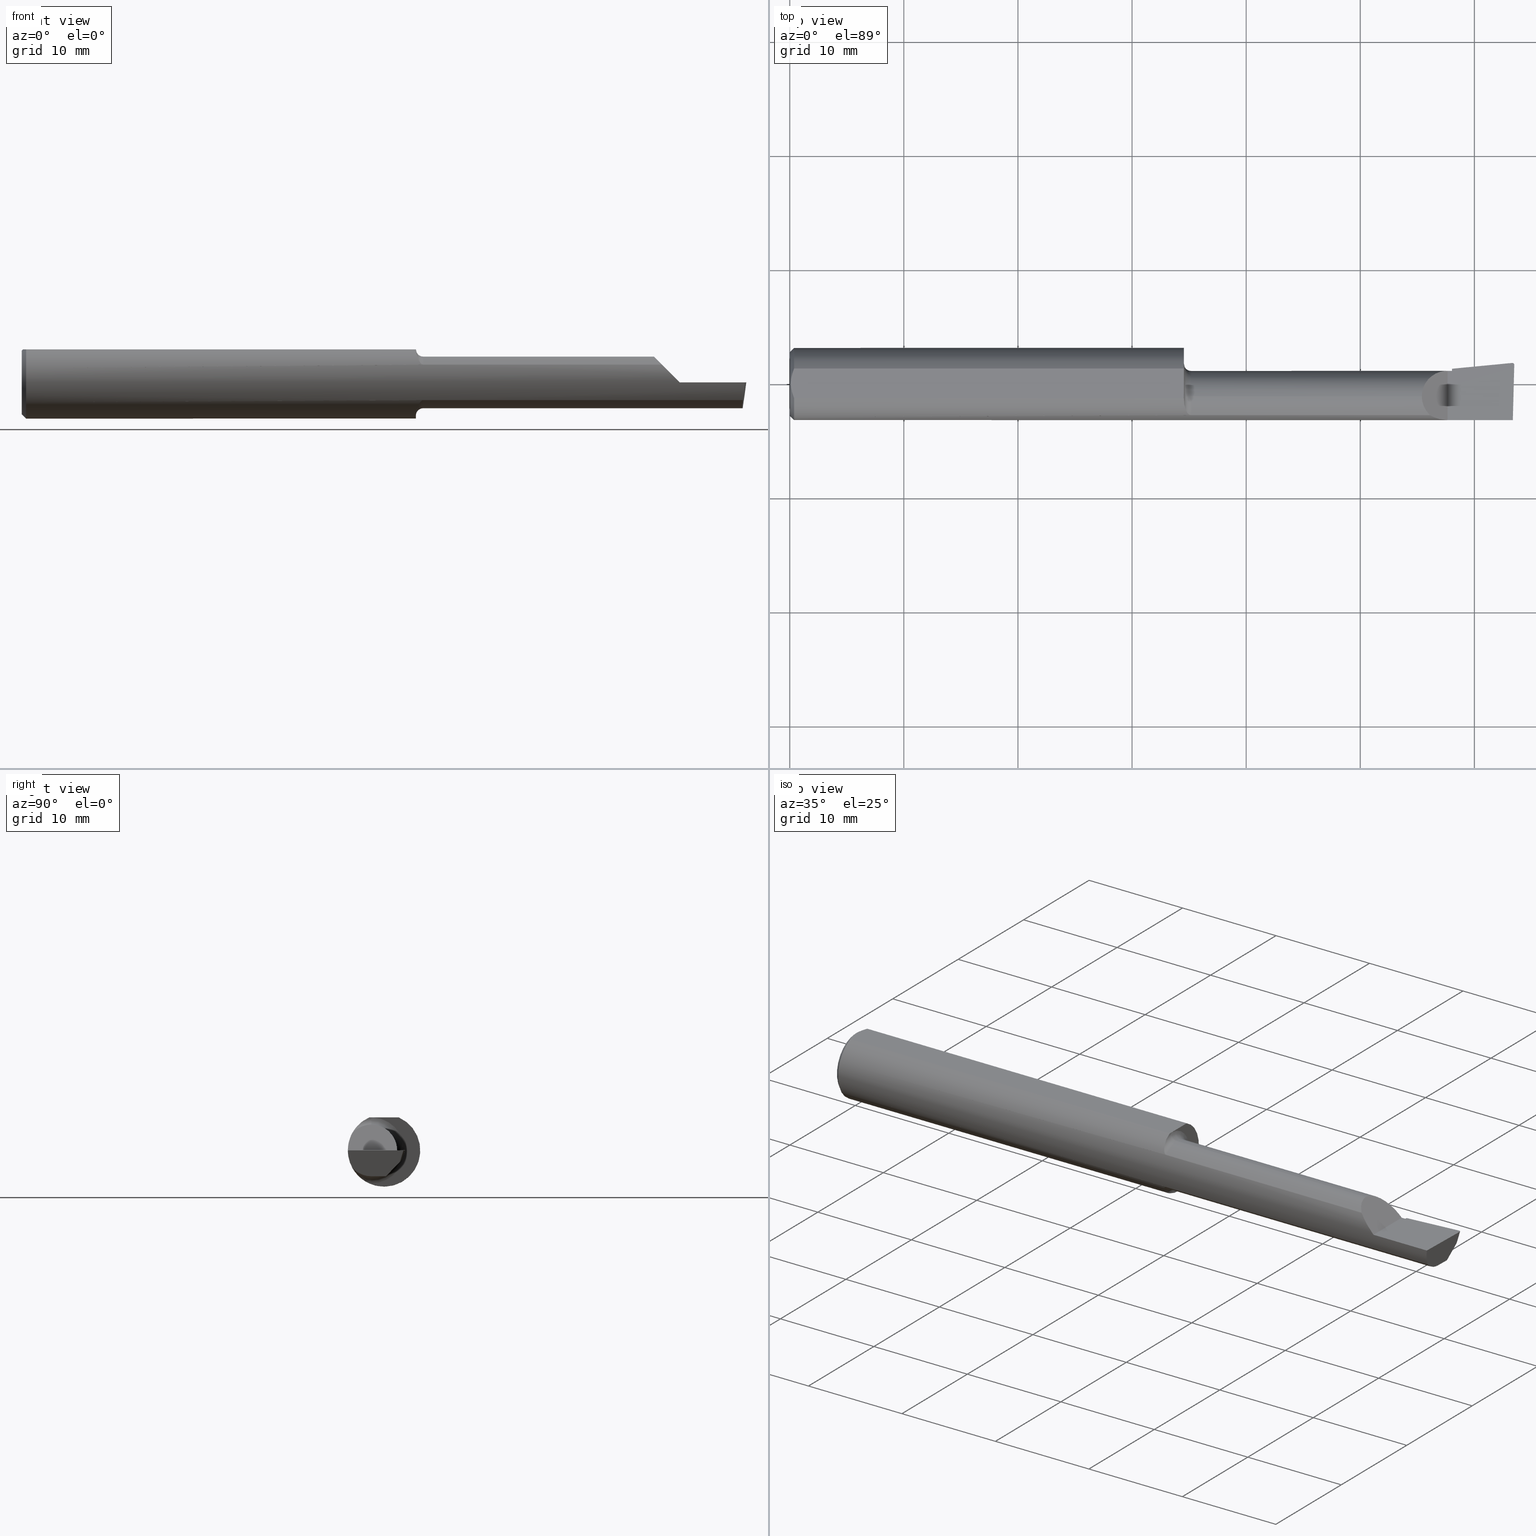
[diagram: canonical four-view strip — front | top / right | iso, engineering-drawing reading convention]
A machine part, canonical four-view strip (front | top / right | iso — engineering-drawing reading convention). The complete STEP part file that produces these views, byte-faithful:
ISO-10303-21;
HEADER;
FILE_DESCRIPTION (( 'STEP AP203' ),
    '1' );
FILE_NAME ('213525-B2001100R.STEP',
    '2024-04-11T18:19:42',
    ( '' ),
    ( '' ),
    'SwSTEP 2.0',
    'SolidWorks 2022',
    '' );
FILE_SCHEMA (( 'CONFIG_CONTROL_DESIGN' ));
ENDSEC;

DATA;
#1 = CLOSED_SHELL ( 'NONE', ( #782, #55, #265, #352, #525, #405, #116, #6, #628, #68, #201, #639, #429, #389, #444, #756, #560, #576, #103, #509, #725, #647, #141 ) ) ;
#2 = COORDINATED_UNIVERSAL_TIME_OFFSET ( 8, 0, .BEHIND. ) ;
#3 = FACE_OUTER_BOUND ( 'NONE', #454, .T. ) ;
#4 = ORIENTED_EDGE ( 'NONE', *, *, #695, .T. ) ;
#5 = APPROVAL_ROLE ( '' ) ;
#6 = ADVANCED_FACE ( 'NONE', ( #36 ), #538, .T. ) ;
#7 = ORIENTED_EDGE ( 'NONE', *, *, #61, .F. ) ;
#8 = ORIENTED_EDGE ( 'NONE', *, *, #360, .F. ) ;
#9 = APPROVAL_ROLE ( '' ) ;
#10 = CARTESIAN_POINT ( 'NONE',  ( 1.385000000000000009, -0.04400000000000000439, 0.000000000000000000 ) ) ;
#11 = EDGE_LOOP ( 'NONE', ( #612, #638, #177, #187, #800, #686, #4, #400, #539, #514, #28, #526 ) ) ;
#12 = VERTEX_POINT ( 'NONE', #724 ) ;
#13 = CARTESIAN_POINT ( 'NONE',  ( 2.285000000000000142, 0.04514999999999997488, 9.802154982235647216E-16 ) ) ;
#14 = VECTOR ( 'NONE', #32, 39.37007874015748854 ) ;
#15 = FACE_OUTER_BOUND ( 'NONE', #302, .T. ) ;
#16 = ORIENTED_EDGE ( 'NONE', *, *, #517, .T. ) ;
#17 = VECTOR ( 'NONE', #508, 39.37007874015748143 ) ;
#18 = LOCAL_TIME ( 11, 19, 42.00000000000000000, #2 ) ;
#19 = EDGE_CURVE ( 'NONE', #388, #64, #153, .T. ) ;
#20 = CARTESIAN_POINT ( 'NONE',  ( 2.287426487320435076, 0.01153919879152676478, -0.08145767591332998825 ) ) ;
#21 = DIRECTION ( 'NONE',  ( -1.000000000000000000, -0.000000000000000000, -0.000000000000000000 ) ) ;
#22 = DIRECTION ( 'NONE',  ( 0.000000000000000000, -0.2936076258024063468, -0.9559260233253795702 ) ) ;
#23 = FACE_OUTER_BOUND ( 'NONE', #472, .T. ) ;
#24 = CARTESIAN_POINT ( 'NONE',  ( 2.495033503332052760, 0.05782878989559110672, -0.03716861643763567230 ) ) ;
#25 = CC_DESIGN_DATE_AND_TIME_ASSIGNMENT ( #706, #132, ( #266 ) ) ;
#26 = DIRECTION ( 'NONE',  ( 0.000000000000000000, 0.000000000000000000, 1.000000000000000000 ) ) ;
#27 = PLANE ( 'NONE',  #501 ) ;
#28 = ORIENTED_EDGE ( 'NONE', *, *, #417, .F. ) ;
#29 = APPROVAL_DATE_TIME ( #648, #817 ) ;
#30 = EDGE_CURVE ( 'NONE', #684, #721, #809, .T. ) ;
#31 = LINE ( 'NONE', #731, #491 ) ;
#32 = DIRECTION ( 'NONE',  ( 0.1240019227989398731, 0.3022330132596650620, 0.9451342385281302771 ) ) ;
#33 = VECTOR ( 'NONE', #150, 39.37007874015748143 ) ;
#34 = APPROVAL_PERSON_ORGANIZATION ( #709, #703, #9 ) ;
#35 = DIRECTION ( 'NONE',  ( 0.000000000000000000, 0.000000000000000000, 1.000000000000000000 ) ) ;
#36 = FACE_OUTER_BOUND ( 'NONE', #11, .T. ) ;
#37 = EDGE_CURVE ( 'NONE', #79, #194, #737, .T. ) ;
#38 = DIRECTION ( 'NONE',  ( -1.000000000000000000, -0.000000000000000000, -0.000000000000000000 ) ) ;
#39 = CARTESIAN_POINT ( 'NONE',  ( 2.500000000000000000, -0.2500000000000000555, -6.829619984160658046E-17 ) ) ;
#40 = EDGE_CURVE ( 'NONE', #606, #303, #419, .T. ) ;
#41 = CARTESIAN_POINT ( 'NONE',  ( 1.361949480984350425, -0.07596136197082524466, 0.09933958580654496384 ) ) ;
#42 = LINE ( 'NONE', #295, #452 ) ;
#43 = VERTEX_POINT ( 'NONE', #339 ) ;
#44 = CIRCLE ( 'NONE', #148, 0.08914999999999999314 ) ;
#45 = CONICAL_SURFACE ( 'NONE', #455, 0.1248500000000000026, 0.7853981633974602694 ) ;
#46 = EDGE_CURVE ( 'NONE', #233, #325, #482, .T. ) ;
#47 = DIRECTION ( 'NONE',  ( -1.000000000000000000, -0.000000000000000000, -0.000000000000000000 ) ) ;
#48 = CARTESIAN_POINT ( 'NONE',  ( 2.489526864478342816, 0.05658981791139860995, -0.02840127226141883621 ) ) ;
#49 = ORIENTED_EDGE ( 'NONE', *, *, #680, .F. ) ;
#50 = ORIENTED_EDGE ( 'NONE', *, *, #298, .T. ) ;
#51 = CARTESIAN_POINT ( 'NONE',  ( 2.499806390372782072, 0.06575634663142121417, -6.816353103369263875E-17 ) ) ;
#52 = DIRECTION ( 'NONE',  ( -0.7071067811865507924, 0.000000000000000000, 0.7071067811865443531 ) ) ;
#53 = CARTESIAN_POINT ( 'NONE',  ( 1.381429951084914842, -0.1083820298415333616, 0.06198549150327745810 ) ) ;
#54 = CARTESIAN_POINT ( 'NONE',  ( 0.004000000000000278506, 1.406179932551309785E-17, 0.1138500000000000345 ) ) ;
#55 = ADVANCED_FACE ( 'NONE', ( #670 ), #599, .T. ) ;
#56 = CIRCLE ( 'NONE', #308, 0.09644785463752904298 ) ;
#57 = AXIS2_PLACEMENT_3D ( 'NONE', #230, #168, #687 ) ;
#58 = DATE_AND_TIME ( #577, #246 ) ;
#59 = CARTESIAN_POINT ( 'NONE',  ( 2.489308682919313842, 0.06224919452706612066, -0.03204403198038578704 ) ) ;
#60 = CARTESIAN_POINT ( 'NONE',  ( 2.208790356734260829, -0.1088159090909091992, 0.06120964326573857806 ) ) ;
#61 = EDGE_CURVE ( 'NONE', #303, #371, #732, .T. ) ;
#62 = ORIENTED_EDGE ( 'NONE', *, *, #685, .F. ) ;
#63 = CARTESIAN_POINT ( 'NONE',  ( 2.285000000000000142, 0.05244785463753250804, 9.802155538913471037E-16 ) ) ;
#64 = VERTEX_POINT ( 'NONE', #275 ) ;
#65 = EDGE_CURVE ( 'NONE', #795, #704, #414, .T. ) ;
#66 = ORIENTED_EDGE ( 'NONE', *, *, #749, .F. ) ;
#67 = ORIENTED_EDGE ( 'NONE', *, *, #298, .F. ) ;
#68 = ADVANCED_FACE ( 'NONE', ( #283 ), #542, .F. ) ;
#69 = APPROVAL_STATUS ( 'not_yet_approved' ) ;
#70 = AXIS2_PLACEMENT_3D ( 'NONE', #814, #678, #821 ) ;
#71 = CARTESIAN_POINT ( 'NONE',  ( 2.289131370391418674, -0.006166688875842945075, -0.08914999999999999314 ) ) ;
#72 = EDGE_LOOP ( 'NONE', ( #343, #375, #767, #649, #75, #66, #672, #617 ) ) ;
#73 = ORIENTED_EDGE ( 'NONE', *, *, #566, .T. ) ;
#74 = CARTESIAN_POINT ( 'NONE',  ( 1.360000000000000320, -0.05106022727272754858, -0.1139314517192570597 ) ) ;
#75 = ORIENTED_EDGE ( 'NONE', *, *, #615, .F. ) ;
#76 = ORIENTED_EDGE ( 'NONE', *, *, #100, .T. ) ;
#77 = DIRECTION ( 'NONE',  ( 0.06658005426110480407, -0.6914603011188221737, -0.7193398003386549666 ) ) ;
#78 = CARTESIAN_POINT ( 'NONE',  ( 1.360000097795984741, -0.05124158467554382895, 0.1138500000000000345 ) ) ;
#79 = VERTEX_POINT ( 'NONE', #410 ) ;
#80 = CARTESIAN_POINT ( 'NONE',  ( 0.000000000000000000, 0.000000000000000000, -0.1098499999999996424 ) ) ;
#81 = CIRCLE ( 'NONE', #659, 0.02499999999999993894 ) ;
#82 = DIRECTION ( 'NONE',  ( -1.000000000000000000, -0.000000000000000000, -0.000000000000000000 ) ) ;
#83 = CARTESIAN_POINT ( 'NONE',  ( 1.360001800064804867, -0.04520694029916791368, 0.1138500000000000206 ) ) ;
#84 = VECTOR ( 'NONE', #279, 39.37007874015748143 ) ;
#85 = CARTESIAN_POINT ( 'NONE',  ( 2.289131370391418674, -0.006166688875842945075, -0.08914999999999999314 ) ) ;
#86 = CARTESIAN_POINT ( 'NONE',  ( 2.217777139085561622, 0.04514999999999994712, 0.05222286091443855555 ) ) ;
#87 = CARTESIAN_POINT ( 'NONE',  ( 0.000000000000000000, 0.000000000000000000, 0.000000000000000000 ) ) ;
#88 = VERTEX_POINT ( 'NONE', #736 ) ;
#89 = CARTESIAN_POINT ( 'NONE',  ( 0.01499999999999999424, 0.05124158467494922820, 0.1138500000000000345 ) ) ;
#90 = CARTESIAN_POINT ( 'NONE',  ( 2.482374292270798755, 0.02326865436117235911, -0.1328662684713349529 ) ) ;
#91 = EDGE_CURVE ( 'NONE', #88, #579, #786, .T. ) ;
#92 = DIRECTION ( 'NONE',  ( -0.1240019227989398731, -0.3022330132596650065, -0.9451342385281302771 ) ) ;
#93 = DIRECTION ( 'NONE',  ( 1.000000000000000000, 0.000000000000000000, 0.000000000000000000 ) ) ;
#94 = VECTOR ( 'NONE', #719, 39.37007874015748854 ) ;
#95 = CARTESIAN_POINT ( 'NONE',  ( 1.381430773366643772, -0.1083837666170487657, -0.06198269038834018640 ) ) ;
#96 = AXIS2_PLACEMENT_3D ( 'NONE', #340, #285, #272 ) ;
#97 = ORIENTED_EDGE ( 'NONE', *, *, #328, .T. ) ;
#98 = CARTESIAN_POINT ( 'NONE',  ( 2.491543817870046862, -0.2497785670779703315, -6.474963748791634766E-17 ) ) ;
#99 = CARTESIAN_POINT ( 'NONE',  ( 0.005037769558486251270, -0.01754148797401016216, 0.1138500000000000206 ) ) ;
#100 = EDGE_CURVE ( 'NONE', #416, #325, #819, .T. ) ;
#101 = CARTESIAN_POINT ( 'NONE',  ( 1.363123628621569994, -0.08156933505717116339, 0.09478144068341098905 ) ) ;
#102 = CARTESIAN_POINT ( 'NONE',  ( 0.004000000000000248149, 0.008831293378136255423, 0.1138500000000000345 ) ) ;
#103 = ADVANCED_FACE ( 'NONE', ( #404 ), #27, .F. ) ;
#104 = CARTESIAN_POINT ( 'NONE',  ( 1.834999999999999964, -0.1088159090909092547, -0.06120964326573859193 ) ) ;
#105 = LINE ( 'NONE', #493, #107 ) ;
#106 = ORIENTED_EDGE ( 'NONE', *, *, #37, .F. ) ;
#107 = VECTOR ( 'NONE', #752, 39.37007874015748854 ) ;
#108 = AXIS2_PLACEMENT_3D ( 'NONE', #823, #759, #768 ) ;
#109 = DIRECTION ( 'NONE',  ( 0.000000000000000000, 0.9524855432518768428, -0.3045837978228269627 ) ) ;
#110 = CARTESIAN_POINT ( 'NONE',  ( 2.270000000000000018, -0.2500000000000000555, 2.816687638038912303E-17 ) ) ;
#111 = ORIENTED_EDGE ( 'NONE', *, *, #615, .T. ) ;
#112 = EDGE_CURVE ( 'NONE', #795, #286, #533, .T. ) ;
#113 = CARTESIAN_POINT ( 'NONE',  ( 1.385000000000000009, -0.1088159090909091020, 0.06120964326573865438 ) ) ;
#114 = DIRECTION ( 'NONE',  ( 0.000000000000000000, 0.000000000000000000, -1.000000000000000000 ) ) ;
#115 = EDGE_LOOP ( 'NONE', ( #242, #361, #264, #289 ) ) ;
#116 = ADVANCED_FACE ( 'NONE', ( #118 ), #244, .T. ) ;
#117 = PERSON_AND_ORGANIZATION ( #364, #580 ) ;
#118 = FACE_OUTER_BOUND ( 'NONE', #646, .T. ) ;
#119 = ORIENTED_EDGE ( 'NONE', *, *, #487, .T. ) ;
#120 = AXIS2_PLACEMENT_3D ( 'NONE', #39, #797, #215 ) ;
#121 = VERTEX_POINT ( 'NONE', #822 ) ;
#122 = VECTOR ( 'NONE', #603, 39.37007874015748143 ) ;
#123 = PERSON_AND_ORGANIZATION ( #364, #580 ) ;
#124 = CARTESIAN_POINT ( 'NONE',  ( 1.360001800064804867, -0.04400000000000000439, 0.1138500000000000345 ) ) ;
#125 =( BOUNDED_CURVE ( )  B_SPLINE_CURVE ( 3, ( #654, #757, #147, #536 ),
 .UNSPECIFIED., .F., .F. ) 
 B_SPLINE_CURVE_WITH_KNOTS ( ( 4, 4 ),
 ( 5.469179596148850742, 6.283185307179586232 ),
 .UNSPECIFIED. ) 
 CURVE ( )  GEOMETRIC_REPRESENTATION_ITEM ( )  RATIONAL_B_SPLINE_CURVE ( ( 1.000000000000000000, 0.9455409277260480305, 0.9455409277260480305, 1.000000000000000000 ) ) 
 REPRESENTATION_ITEM ( '' )  );
#126 = CARTESIAN_POINT ( 'NONE',  ( 1.360000000000000320, 0.1748500000000000609, 0.1138500000000000068 ) ) ;
#127 = EDGE_LOOP ( 'NONE', ( #716, #464, #288, #779, #764 ) ) ;
#128 = EDGE_CURVE ( 'NONE', #606, #825, #623, .T. ) ;
#129 = COORDINATED_UNIVERSAL_TIME_OFFSET ( 8, 0, .BEHIND. ) ;
#130 = ORIENTED_EDGE ( 'NONE', *, *, #91, .F. ) ;
#131 = ORIENTED_EDGE ( 'NONE', *, *, #714, .F. ) ;
#132 = DATE_TIME_ROLE ( 'creation_date' ) ;
#133 = CARTESIAN_POINT ( 'NONE',  ( 2.286376142476870932, -0.006849672022903362592, -0.08914999999999999314 ) ) ;
#134 = ORIENTED_EDGE ( 'NONE', *, *, #771, .T. ) ;
#135 = ORIENTED_EDGE ( 'NONE', *, *, #360, .T. ) ;
#136 = AXIS2_PLACEMENT_3D ( 'NONE', #409, #274, #35 ) ;
#137 = CARTESIAN_POINT ( 'NONE',  ( 2.488708270062193861, 0.06223409919824426234, -0.03200000000000000067 ) ) ;
#138 = ORIENTED_EDGE ( 'NONE', *, *, #663, .F. ) ;
#139 = ORIENTED_EDGE ( 'NONE', *, *, #213, .T. ) ;
#140 = CARTESIAN_POINT ( 'NONE',  ( 2.285000000000000142, 0.03673923312418244519, -0.05275760512666258228 ) ) ;
#141 = ADVANCED_FACE ( 'NONE', ( #442 ), #568, .T. ) ;
#142 = FACE_OUTER_BOUND ( 'NONE', #390, .T. ) ;
#143 = ORIENTED_EDGE ( 'NONE', *, *, #777, .T. ) ;
#144 = SHAPE_DEFINITION_REPRESENTATION ( #182, #210 ) ;
#145 = DIRECTION ( 'NONE',  ( -0.02617694830787469992, -0.9996573249755572599, -8.492548844487195967E-17 ) ) ;
#146 = CARTESIAN_POINT ( 'NONE',  ( 0.01499999999999998730, -0.05124158467494919350, 0.1138500000000000345 ) ) ;
#147 = CARTESIAN_POINT ( 'NONE',  ( 2.180849999999999067, -0.06888227343086726628, 0.08914999999999995151 ) ) ;
#148 = AXIS2_PLACEMENT_3D ( 'NONE', #727, #527, #531 ) ;
#149 = DIRECTION ( 'NONE',  ( -1.000000000000000000, -0.000000000000000000, -0.000000000000000000 ) ) ;
#150 = DIRECTION ( 'NONE',  ( 0.000000000000000000, 0.2936076258024063468, 0.9559260233253795702 ) ) ;
#151 = CARTESIAN_POINT ( 'NONE',  ( 0.000000000000000000, -0.04399999999999999745, 0.000000000000000000 ) ) ;
#152 = LINE ( 'NONE', #588, #738 ) ;
#153 = LINE ( 'NONE', #788, #202 ) ;
#154 = EDGE_CURVE ( 'NONE', #521, #535, #616, .T. ) ;
#155 = VERTEX_POINT ( 'NONE', #555 ) ;
#156 = CARTESIAN_POINT ( 'NONE',  ( 0.000000000000000000, 0.000000000000000000, 0.000000000000000000 ) ) ;
#157 = DIRECTION ( 'NONE',  ( -1.000000000000000000, -0.000000000000000000, -0.000000000000000000 ) ) ;
#158 = ORIENTED_EDGE ( 'NONE', *, *, #30, .T. ) ;
#159 = CARTESIAN_POINT ( 'NONE',  ( 2.499910038027506776, 0.06971449087509833109, -7.108814210301349175E-17 ) ) ;
#160 = ORIENTED_EDGE ( 'NONE', *, *, #658, .F. ) ;
#161 = DIRECTION ( 'NONE',  ( 1.000000000000000000, 0.000000000000000000, 0.000000000000000000 ) ) ;
#162 = AXIS2_PLACEMENT_3D ( 'NONE', #541, #399, #226 ) ;
#163 = PRODUCT_DEFINITION_FORMATION_WITH_SPECIFIED_SOURCE ( 'ANY', '', #366, .NOT_KNOWN. ) ;
#164 = EDGE_CURVE ( 'NONE', #825, #276, #56, .T. ) ;
#165 = CARTESIAN_POINT ( 'NONE',  ( 1.374298474000562376, -0.1041086701288377048, 0.06897617952030529742 ) ) ;
#166 = DIRECTION ( 'NONE',  ( -1.000000000000000000, -0.000000000000000000, -0.000000000000000000 ) ) ;
#167 = ORIENTED_EDGE ( 'NONE', *, *, #229, .F. ) ;
#168 = DIRECTION ( 'NONE',  ( -1.000000000000000000, 0.000000000000000000, -0.000000000000000000 ) ) ;
#169 = CARTESIAN_POINT ( 'NONE',  ( 2.270000000000000018, -0.1248500000000000165, 2.816687638038912303E-17 ) ) ;
#170 = ORIENTED_EDGE ( 'NONE', *, *, #487, .F. ) ;
#171 = APPROVAL ( #391, 'UNSPECIFIED' ) ;
#172 = CARTESIAN_POINT ( 'NONE',  ( 4.111069666048746882E-31, 0.04514999999999992630, 9.802154982235641300E-16 ) ) ;
#173 = CARTESIAN_POINT ( 'NONE',  ( 2.500000000000000000, -0.04399999999999999745, -0.08914999999999999314 ) ) ;
#174 = APPLICATION_CONTEXT ( 'configuration controlled 3d designs of mechanical parts and assemblies' ) ;
#175 = EDGE_CURVE ( 'NONE', #155, #772, #237, .T. ) ;
#176 = AXIS2_PLACEMENT_3D ( 'NONE', #796, #665, #418 ) ;
#177 = ORIENTED_EDGE ( 'NONE', *, *, #238, .T. ) ;
#178 = DIRECTION ( 'NONE',  ( 0.000000000000000000, 0.000000000000000000, 1.000000000000000000 ) ) ;
#179 = CARTESIAN_POINT ( 'NONE',  ( 2.284439022446592915, 0.04256520776931357886, -0.03200000000000000067 ) ) ;
#180 = EDGE_CURVE ( 'NONE', #721, #438, #679, .T. ) ;
#181 = ORIENTED_EDGE ( 'NONE', *, *, #597, .F. ) ;
#182 = PRODUCT_DEFINITION_SHAPE ( 'NONE', 'NONE',  #266 ) ;
#183 = PERSON_AND_ORGANIZATION ( #364, #580 ) ;
#184 = CARTESIAN_POINT ( 'NONE',  ( 0.01499999999999999424, 0.05124158467494922820, 0.1138500000000000345 ) ) ;
#185 = CARTESIAN_POINT ( 'NONE',  ( 2.284439022446592915, 0.04256520776931357886, -0.03200000000000000067 ) ) ;
#186 = DIRECTION ( 'NONE',  ( 0.06894566448119622548, -0.7160281025913036723, 0.6946583704589932573 ) ) ;
#187 = ORIENTED_EDGE ( 'NONE', *, *, #506, .T. ) ;
#188 = AXIS2_PLACEMENT_3D ( 'NONE', #151, #273, #660 ) ;
#189 = AXIS2_PLACEMENT_3D ( 'NONE', #554, #47, #290 ) ;
#190 = MECHANICAL_CONTEXT ( 'NONE', #174, 'mechanical' ) ;
#191 = CARTESIAN_POINT ( 'NONE',  ( 1.385000000000000009, -0.04400000000000000439, 0.000000000000000000 ) ) ;
#192 = EDGE_CURVE ( 'NONE', #121, #521, #105, .T. ) ;
#193 = CARTESIAN_POINT ( 'NONE',  ( 0.000000000000000000, -0.04399999999999999745, 0.000000000000000000 ) ) ;
#194 = VERTEX_POINT ( 'NONE', #683 ) ;
#195 = ORIENTED_EDGE ( 'NONE', *, *, #91, .T. ) ;
#196 = CARTESIAN_POINT ( 'NONE',  ( 2.289728664559030236, -0.01236982598015578041, -0.08914999999999999314 ) ) ;
#197 = EDGE_LOOP ( 'NONE', ( #131, #547, #460, #758 ) ) ;
#198 = PERSON_AND_ORGANIZATION_ROLE ( 'design_owner' ) ;
#199 = ORIENTED_EDGE ( 'NONE', *, *, #37, .T. ) ;
#200 =( BOUNDED_CURVE ( )  B_SPLINE_CURVE ( 3, ( #387, #763, #769, #60 ),
 .UNSPECIFIED., .F., .T. ) 
 B_SPLINE_CURVE_WITH_KNOTS ( ( 4, 4 ),
 ( 4.712388980384689674, 5.224783288303638251 ),
 .UNSPECIFIED. ) 
 CURVE ( )  GEOMETRIC_REPRESENTATION_ITEM ( )  RATIONAL_B_SPLINE_CURVE ( ( 1.000000000000000000, 0.9782404171696015283, 0.9782404171696015283, 1.000000000000000000 ) ) 
 REPRESENTATION_ITEM ( '' )  );
#201 = ADVANCED_FACE ( 'NONE', ( #368 ), #241, .F. ) ;
#202 = VECTOR ( 'NONE', #93, 39.37007874015748143 ) ;
#203 = AXIS2_PLACEMENT_3D ( 'NONE', #193, #149, #287 ) ;
#204 = CARTESIAN_POINT ( 'NONE',  ( 2.492906680581894907, 0.07246699102466953868, -6.532122848640831126E-17 ) ) ;
#205 = ORIENTED_EDGE ( 'NONE', *, *, #252, .T. ) ;
#206 = FACE_OUTER_BOUND ( 'NONE', #248, .T. ) ;
#207 = EDGE_CURVE ( 'NONE', #194, #556, #436, .T. ) ;
#208 = CARTESIAN_POINT ( 'NONE',  ( 2.499806390372782072, 0.06575634663142121417, -6.816353103369263875E-17 ) ) ;
#209 = VERTEX_POINT ( 'NONE', #305 ) ;
#210 = ADVANCED_BREP_SHAPE_REPRESENTATION ( '213525-B2001100R', ( #301, #108 ), #370 ) ;
#211 =( BOUNDED_CURVE ( )  B_SPLINE_CURVE ( 3, ( #140, #781, #20, #85 ),
 .UNSPECIFIED., .F., .T. ) 
 B_SPLINE_CURVE_WITH_KNOTS ( ( 4, 4 ),
 ( 3.715324695526664112, 4.302525637907667289 ),
 .UNSPECIFIED. ) 
 CURVE ( )  GEOMETRIC_REPRESENTATION_ITEM ( )  RATIONAL_B_SPLINE_CURVE ( ( 1.000000000000000000, 0.9714720692997454998, 0.9714720692997454998, 1.000000000000000000 ) ) 
 REPRESENTATION_ITEM ( '' )  );
#212 = CARTESIAN_POINT ( 'NONE',  ( 2.489308682919313842, 0.06224919452706612066, -0.03204403198038578704 ) ) ;
#213 = EDGE_CURVE ( 'NONE', #396, #772, #694, .T. ) ;
#214 = DIRECTION ( 'NONE',  ( 0.000000000000000000, 1.000000000000000000, -1.464745492742491612E-16 ) ) ;
#215 = DIRECTION ( 'NONE',  ( -1.000000000000000000, 0.000000000000000000, 4.194046792260684025E-16 ) ) ;
#216 = FACE_OUTER_BOUND ( 'NONE', #197, .T. ) ;
#217 = AXIS2_PLACEMENT_3D ( 'NONE', #498, #743, #114 ) ;
#218 = CIRCLE ( 'NONE', #540, 0.1248500000000000026 ) ;
#219 = CARTESIAN_POINT ( 'NONE',  ( 2.489526864478342816, 0.06278097394253581709, -0.03038106694726721083 ) ) ;
#220 = CARTESIAN_POINT ( 'NONE',  ( 2.487716879513912627, -0.1088159090909092547, -0.06120964326573859193 ) ) ;
#221 = SECURITY_CLASSIFICATION ( '', '', #643 ) ;
#222 = ORIENTED_EDGE ( 'NONE', *, *, #40, .F. ) ;
#223 = PLANE ( 'NONE',  #515 ) ;
#224 = CARTESIAN_POINT ( 'NONE',  ( 2.485330758133041495, -0.06888227343086728016, -0.08914999999999993763 ) ) ;
#225 = CC_DESIGN_PERSON_AND_ORGANIZATION_ASSIGNMENT ( #510, #315, ( #221 ) ) ;
#226 = DIRECTION ( 'NONE',  ( 0.000000000000000000, -1.000000000000000000, -8.537024980200821325E-17 ) ) ;
#227 = CARTESIAN_POINT ( 'NONE',  ( 2.285000000000000142, 0.06337734316083880326, -0.01060329987060041473 ) ) ;
#228 = EDGE_LOOP ( 'NONE', ( #443, #829, #589, #459, #62 ) ) ;
#229 = EDGE_CURVE ( 'NONE', #303, #521, #495, .T. ) ;
#230 = CARTESIAN_POINT ( 'NONE',  ( 2.285000000000000142, 0.05244785463752904553, 0.000000000000000000 ) ) ;
#231 = CARTESIAN_POINT ( 'NONE',  ( 1.385000000000000009, -0.04399999999999999745, 0.000000000000000000 ) ) ;
#232 = VECTOR ( 'NONE', #367, 39.37007874015748143 ) ;
#233 = VERTEX_POINT ( 'NONE', #633 ) ;
#234 = DIRECTION ( 'NONE',  ( 0.000000000000000000, 0.000000000000000000, -1.000000000000000000 ) ) ;
#235 = DIRECTION ( 'NONE',  ( -1.000000000000000000, 5.691349986800549142E-18, -0.000000000000000000 ) ) ;
#236 = CARTESIAN_POINT ( 'NONE',  ( 1.360007259122735901, -0.05787968516969613231, 0.1108623250892746270 ) ) ;
#237 = LINE ( 'NONE', #374, #524 ) ;
#238 = EDGE_CURVE ( 'NONE', #519, #239, #740, .T. ) ;
#239 = VERTEX_POINT ( 'NONE', #169 ) ;
#240 = CARTESIAN_POINT ( 'NONE',  ( 2.494148570224382411, 0.05196639891662067912, -0.04312352112763103568 ) ) ;
#241 = PLANE ( 'NONE',  #468 ) ;
#242 = ORIENTED_EDGE ( 'NONE', *, *, #278, .T. ) ;
#243 = EDGE_CURVE ( 'NONE', #325, #388, #543, .T. ) ;
#244 = CONICAL_SURFACE ( 'NONE', #217, 0.09644785463752904298, 0.09599310885968871665 ) ;
#245 = LOCAL_TIME ( 11, 19, 42.00000000000000000, #129 ) ;
#246 = LOCAL_TIME ( 11, 19, 42.00000000000000000, #461 ) ;
#247 = CYLINDRICAL_SURFACE ( 'NONE', #297, 0.006500000000000003171 ) ;
#248 = EDGE_LOOP ( 'NONE', ( #691, #808, #326, #469 ) ) ;
#249 = EDGE_CURVE ( 'NONE', #438, #556, #446, .T. ) ;
#250 = PERSON_AND_ORGANIZATION ( #364, #580 ) ;
#251 = CARTESIAN_POINT ( 'NONE',  ( 2.285000000000000142, -0.007196927245378875737, -0.08914999999999999314 ) ) ;
#252 = EDGE_CURVE ( 'NONE', #371, #121, #42, .T. ) ;
#253 = APPROVAL_DATE_TIME ( #379, #171 ) ;
#254 = FACE_OUTER_BOUND ( 'NONE', #228, .T. ) ;
#255 = ORIENTED_EDGE ( 'NONE', *, *, #164, .T. ) ;
#256 = CONICAL_SURFACE ( 'NONE', #383, 0.1248500000000000026, 0.7853981633974602694 ) ;
#257 = ORIENTED_EDGE ( 'NONE', *, *, #128, .T. ) ;
#258 = DATE_AND_TIME ( #827, #18 ) ;
#259 = EDGE_LOOP ( 'NONE', ( #774, #544, #653, #181 ) ) ;
#260 = COORDINATED_UNIVERSAL_TIME_OFFSET ( 8, 0, .BEHIND. ) ;
#261 = ORIENTED_EDGE ( 'NONE', *, *, #243, .F. ) ;
#262 = VERTEX_POINT ( 'NONE', #13 ) ;
#263 = CARTESIAN_POINT ( 'NONE',  ( 2.284439022446592915, 0.04256520776931357886, -0.03200000000000000067 ) ) ;
#264 = ORIENTED_EDGE ( 'NONE', *, *, #328, .F. ) ;
#265 = ADVANCED_FACE ( 'NONE', ( #206 ), #717, .T. ) ;
#266 = PRODUCT_DEFINITION ( 'UNKNOWN', '', #163, #572 ) ;
#267 = VERTEX_POINT ( 'NONE', #80 ) ;
#268 = CARTESIAN_POINT ( 'NONE',  ( 2.494148570224382411, 0.05196639891662067912, -0.04312352112763103568 ) ) ;
#269 = AXIS2_PLACEMENT_3D ( 'NONE', #484, #413, #598 ) ;
#270 = CARTESIAN_POINT ( 'NONE',  ( 2.285000000000000142, -0.04399999999999999745, -0.08914999999999999314 ) ) ;
#271 = ORIENTED_EDGE ( 'NONE', *, *, #695, .F. ) ;
#272 = DIRECTION ( 'NONE',  ( 0.000000000000000000, 0.000000000000000000, 1.000000000000000000 ) ) ;
#273 = DIRECTION ( 'NONE',  ( -1.000000000000000000, -0.000000000000000000, -0.000000000000000000 ) ) ;
#274 = DIRECTION ( 'NONE',  ( -1.000000000000000000, -0.000000000000000000, -0.000000000000000000 ) ) ;
#275 = CARTESIAN_POINT ( 'NONE',  ( 1.360000000000000320, 0.05124158467494921432, 0.1138500000000000206 ) ) ;
#276 = VERTEX_POINT ( 'NONE', #335 ) ;
#277 = CARTESIAN_POINT ( 'NONE',  ( 1.360001123980412174, -0.03986479258532062836, 0.1138500000000000484 ) ) ;
#278 = EDGE_CURVE ( 'NONE', #606, #548, #347, .T. ) ;
#279 = DIRECTION ( 'NONE',  ( 0.000000000000000000, 1.000000000000000000, 8.537024980200821325E-17 ) ) ;
#280 = CARTESIAN_POINT ( 'NONE',  ( 2.283501326855139624, 0.05230354882685436801, -6.829619984160658046E-17 ) ) ;
#281 = VECTOR ( 'NONE', #518, 39.37007874015748143 ) ;
#282 = DIRECTION ( 'NONE',  ( -1.000000000000000000, -0.000000000000000000, -0.000000000000000000 ) ) ;
#283 = FACE_OUTER_BOUND ( 'NONE', #72, .T. ) ;
#284 = CC_DESIGN_PERSON_AND_ORGANIZATION_ASSIGNMENT ( #123, #310, ( #163 ) ) ;
#285 = DIRECTION ( 'NONE',  ( -1.000000000000000000, -0.000000000000000000, -0.000000000000000000 ) ) ;
#286 = VERTEX_POINT ( 'NONE', #587 ) ;
#287 = DIRECTION ( 'NONE',  ( 0.000000000000000000, 0.000000000000000000, 1.000000000000000000 ) ) ;
#288 = ORIENTED_EDGE ( 'NONE', *, *, #30, .F. ) ;
#289 = ORIENTED_EDGE ( 'NONE', *, *, #128, .F. ) ;
#290 = DIRECTION ( 'NONE',  ( 0.000000000000000000, 0.000000000000000000, 1.000000000000000000 ) ) ;
#291 = CARTESIAN_POINT ( 'NONE',  ( 0.004000000000000278506, 1.406179932551309785E-17, 0.1138500000000000345 ) ) ;
#292 = ORIENTED_EDGE ( 'NONE', *, *, #663, .T. ) ;
#293 = CARTESIAN_POINT ( 'NONE',  ( 1.366367198475050282, -0.09170680217278594226, 0.08501141308632335913 ) ) ;
#294 =( BOUNDED_CURVE ( )  B_SPLINE_CURVE ( 3, ( #384, #592, #398, #596 ),
 .UNSPECIFIED., .F., .T. ) 
 B_SPLINE_CURVE_WITH_KNOTS ( ( 4, 4 ),
 ( 0.8483525745957783970, 1.360746882514726197 ),
 .UNSPECIFIED. ) 
 CURVE ( )  GEOMETRIC_REPRESENTATION_ITEM ( )  RATIONAL_B_SPLINE_CURVE ( ( 1.000000000000000000, 0.9782404171696016393, 0.9782404171696016393, 1.000000000000000000 ) ) 
 REPRESENTATION_ITEM ( '' )  );
#295 = CARTESIAN_POINT ( 'NONE',  ( 1.283350732061822486, -0.04399999999999999745, 4.419721961086355934E-16 ) ) ;
#296 = TOROIDAL_SURFACE ( 'NONE', #406, 0.1141499999999998904, 0.02499999999999993894 ) ;
#297 = AXIS2_PLACEMENT_3D ( 'NONE', #434, #682, #109 ) ;
#298 = EDGE_CURVE ( 'NONE', #535, #795, #780, .T. ) ;
#299 = FACE_OUTER_BOUND ( 'NONE', #816, .T. ) ;
#300 = CARTESIAN_POINT ( 'NONE',  ( 2.489110479795024311, 0.06225857814712751348, -0.03201468779820760419 ) ) ;
#301 = MANIFOLD_SOLID_BREP ( 'Fillet1', #1 ) ;
#302 = EDGE_LOOP ( 'NONE', ( #733, #73 ) ) ;
#303 = VERTEX_POINT ( 'NONE', #693 ) ;
#304 = DIRECTION ( 'NONE',  ( 1.000000000000000000, 0.000000000000000000, 0.000000000000000000 ) ) ;
#305 = CARTESIAN_POINT ( 'NONE',  ( 2.208790356734260829, -0.1088159090909091992, 0.06120964326573857806 ) ) ;
#306 = FACE_OUTER_BOUND ( 'NONE', #571, .T. ) ;
#307 = CARTESIAN_POINT ( 'NONE',  ( 0.005053359673950995161, 0.01761291720128071656, 0.1138500000000000484 ) ) ;
#308 = AXIS2_PLACEMENT_3D ( 'NONE', #311, #166, #747 ) ;
#309 = VECTOR ( 'NONE', #92, 39.37007874015748854 ) ;
#310 = PERSON_AND_ORGANIZATION_ROLE ( 'creator' ) ;
#311 = CARTESIAN_POINT ( 'NONE',  ( 2.285000000000000142, -0.04399999999999999745, 0.000000000000000000 ) ) ;
#312 = CYLINDRICAL_SURFACE ( 'NONE', #203, 0.08914999999999993763 ) ;
#313 = ORIENTED_EDGE ( 'NONE', *, *, #154, .F. ) ;
#314 = EDGE_CURVE ( 'NONE', #79, #88, #720, .T. ) ;
#315 = PERSON_AND_ORGANIZATION_ROLE ( 'classification_officer' ) ;
#316 = CARTESIAN_POINT ( 'NONE',  ( 2.289131370391418674, -0.006166688875842945075, -0.08914999999999999314 ) ) ;
#317 = CARTESIAN_POINT ( 'NONE',  ( 1.385000000000000009, -0.04399999999999999745, -0.08914999999999988212 ) ) ;
#318 = ORIENTED_EDGE ( 'NONE', *, *, #65, .F. ) ;
#319 = DIRECTION ( 'NONE',  ( 0.000000000000000000, 0.000000000000000000, 1.000000000000000000 ) ) ;
#320 = ORIENTED_EDGE ( 'NONE', *, *, #112, .F. ) ;
#321 = VECTOR ( 'NONE', #787, 39.37007874015748854 ) ;
#322 = EDGE_CURVE ( 'NONE', #209, #155, #125, .T. ) ;
#323 = PERSON_AND_ORGANIZATION_ROLE ( 'design_supplier' ) ;
#324 = CARTESIAN_POINT ( 'NONE',  ( 1.377418472017428730, -0.1064706388662828851, -0.06522095769404988308 ) ) ;
#325 = VERTEX_POINT ( 'NONE', #473 ) ;
#326 = ORIENTED_EDGE ( 'NONE', *, *, #213, .F. ) ;
#327 = APPROVAL_DATE_TIME ( #58, #703 ) ;
#328 = EDGE_CURVE ( 'NONE', #825, #392, #211, .T. ) ;
#329 = CARTESIAN_POINT ( 'NONE',  ( 2.493512870449316132, 0.07249616680637244182, -6.829619984160658046E-17 ) ) ;
#330 = ORIENTED_EDGE ( 'NONE', *, *, #503, .F. ) ;
#331 = CC_DESIGN_DATE_AND_TIME_ASSIGNMENT ( #258, #581, ( #221 ) ) ;
#332 = CARTESIAN_POINT ( 'NONE',  ( 2.180849999999999067, 0.008222860914438547691, 0.08914999999999995151 ) ) ;
#333 = ORIENTED_EDGE ( 'NONE', *, *, #586, .F. ) ;
#334 = VECTOR ( 'NONE', #619, 39.37007874015748143 ) ;
#335 = CARTESIAN_POINT ( 'NONE',  ( 2.285000000000000142, -0.007196927245378875737, -0.08914999999999999314 ) ) ;
#336 = AXIS2_PLACEMENT_3D ( 'NONE', #231, #559, #500 ) ;
#337 = VECTOR ( 'NONE', #304, 39.37007874015748143 ) ;
#338 = DIRECTION ( 'NONE',  ( 0.000000000000000000, -1.464745492742491612E-16, -1.000000000000000000 ) ) ;
#339 = CARTESIAN_POINT ( 'NONE',  ( 2.270000000000000018, 0.04514999999999985691, 2.816687638038912303E-17 ) ) ;
#340 = CARTESIAN_POINT ( 'NONE',  ( 0.000000000000000000, 0.000000000000000000, 0.000000000000000000 ) ) ;
#341 = EDGE_CURVE ( 'NONE', #684, #519, #294, .T. ) ;
#342 =( BOUNDED_CURVE ( )  B_SPLINE_CURVE ( 3, ( #723, #332, #86, #609 ),
 .UNSPECIFIED., .F., .T. ) 
 B_SPLINE_CURVE_WITH_KNOTS ( ( 4, 4 ),
 ( 0.000000000000000000, 1.570796326794896558 ),
 .UNSPECIFIED. ) 
 CURVE ( )  GEOMETRIC_REPRESENTATION_ITEM ( )  RATIONAL_B_SPLINE_CURVE ( ( 1.000000000000000000, 0.8047378541243649375, 0.8047378541243649375, 1.000000000000000000 ) ) 
 REPRESENTATION_ITEM ( '' )  );
#343 = ORIENTED_EDGE ( 'NONE', *, *, #810, .T. ) ;
#344 = PLANE ( 'NONE',  #269 ) ;
#345 = CARTESIAN_POINT ( 'NONE',  ( 1.360000000000000320, -0.04399999999999999745, 0.000000000000000000 ) ) ;
#346 = DIRECTION ( 'NONE',  ( 0.000000000000000000, 0.000000000000000000, -1.000000000000000000 ) ) ;
#347 = LINE ( 'NONE', #185, #550 ) ;
#348 = CARTESIAN_POINT ( 'NONE',  ( 0.01499999999999999424, 0.000000000000000000, -0.1248500000000000026 ) ) ;
#349 = DIRECTION ( 'NONE',  ( 0.000000000000000000, 0.000000000000000000, 1.000000000000000000 ) ) ;
#350 = ORIENTED_EDGE ( 'NONE', *, *, #175, .F. ) ;
#351 = AXIS2_PLACEMENT_3D ( 'NONE', #48, #435, #377 ) ;
#352 = ADVANCED_FACE ( 'NONE', ( #216 ), #296, .F. ) ;
#353 = AXIS2_PLACEMENT_3D ( 'NONE', #655, #82, #178 ) ;
#354 = LINE ( 'NONE', #348, #122 ) ;
#355 = CARTESIAN_POINT ( 'NONE',  ( 0.008889541251485982148, -0.03475029298915140868, 0.1138500000000000484 ) ) ;
#356 = APPROVAL_PERSON_ORGANIZATION ( #516, #817, #5 ) ;
#357 = ORIENTED_EDGE ( 'NONE', *, *, #164, .F. ) ;
#358 = CARTESIAN_POINT ( 'NONE',  ( 1.377431632364403580, -0.1064782986023076888, 0.06520809716638668874 ) ) ;
#359 = CARTESIAN_POINT ( 'NONE',  ( 1.360000312090655639, -0.05003465832687906123, 0.1138500000000000761 ) ) ;
#360 = EDGE_CURVE ( 'NONE', #262, #438, #44, .T. ) ;
#361 = ORIENTED_EDGE ( 'NONE', *, *, #503, .T. ) ;
#362 = FACE_OUTER_BOUND ( 'NONE', #115, .T. ) ;
#363 = CARTESIAN_POINT ( 'NONE',  ( 0.000000000000000000, -0.04399999999999998357, -0.08914999999999993763 ) ) ;
#364 = PERSON ( 'UNSPECIFIED', 'UNSPECIFIED', 'UNSPECIFIED', ('UNSPECIFIED'), ('UNSPECIFIED'), ('UNSPECIFIED') ) ;
#365 = ORIENTED_EDGE ( 'NONE', *, *, #61, .T. ) ;
#366 = PRODUCT ( '213525-B2001100R', '213525-B2001100R', '', ( #190 ) ) ;
#367 = DIRECTION ( 'NONE',  ( -1.000000000000000000, -0.000000000000000000, -0.000000000000000000 ) ) ;
#368 = FACE_OUTER_BOUND ( 'NONE', #259, .T. ) ;
#369 = VECTOR ( 'NONE', #664, 39.37007874015748143 ) ;
#370 =( GEOMETRIC_REPRESENTATION_CONTEXT ( 3 ) GLOBAL_UNCERTAINTY_ASSIGNED_CONTEXT ( ( #705 ) ) GLOBAL_UNIT_ASSIGNED_CONTEXT ( ( #458, #640, #449 ) ) REPRESENTATION_CONTEXT ( 'NONE', 'WORKASPACE' ) );
#371 = VERTEX_POINT ( 'NONE', #63 ) ;
#372 = EDGE_CURVE ( 'NONE', #396, #209, #722, .T. ) ;
#373 = EDGE_LOOP ( 'NONE', ( #205, #635, #167, #365 ) ) ;
#374 = CARTESIAN_POINT ( 'NONE',  ( 0.000000000000000000, -0.04399999999999999745, 0.08914999999999993763 ) ) ;
#375 = ORIENTED_EDGE ( 'NONE', *, *, #794, .T. ) ;
#376 = PLANE ( 'NONE',  #70 ) ;
#377 = DIRECTION ( 'NONE',  ( 0.000000000000000000, 0.9524855432518768428, -0.3045837978228269627 ) ) ;
#378 = ORIENTED_EDGE ( 'NONE', *, *, #680, .T. ) ;
#379 = DATE_AND_TIME ( #465, #790 ) ;
#380 = DIRECTION ( 'NONE',  ( 0.000000000000000000, 0.000000000000000000, 1.000000000000000000 ) ) ;
#381 = CARTESIAN_POINT ( 'NONE',  ( 1.374260533375047055, -0.1040753176265711150, -0.06902783361385357586 ) ) ;
#382 = VECTOR ( 'NONE', #604, 39.37007874015748143 ) ;
#383 = AXIS2_PLACEMENT_3D ( 'NONE', #657, #161, #611 ) ;
#384 = CARTESIAN_POINT ( 'NONE',  ( 2.487716879513912627, -0.1088159090909092547, -0.06120964326573859193 ) ) ;
#385 = CARTESIAN_POINT ( 'NONE',  ( 2.494815187529301426, -0.1248500000000000304, -6.610128768667490488E-17 ) ) ;
#386 = ORIENTED_EDGE ( 'NONE', *, *, #714, .T. ) ;
#387 = CARTESIAN_POINT ( 'NONE',  ( 2.270000000000000018, -0.1248500000000000165, 2.816687638038912303E-17 ) ) ;
#388 = VERTEX_POINT ( 'NONE', #89 ) ;
#389 = ADVANCED_FACE ( 'NONE', ( #824 ), #621, .F. ) ;
#390 = EDGE_LOOP ( 'NONE', ( #620, #420, #642, #261, #505, #271, #130 ) ) ;
#391 = APPROVAL_STATUS ( 'not_yet_approved' ) ;
#392 = VERTEX_POINT ( 'NONE', #316 ) ;
#393 = AXIS2_PLACEMENT_3D ( 'NONE', #534, #667, #411 ) ;
#394 = CALENDAR_DATE ( 2024, 11, 4 ) ;
#395 = DIRECTION ( 'NONE',  ( -1.000000000000000000, -0.000000000000000000, -0.000000000000000000 ) ) ;
#396 = VERTEX_POINT ( 'NONE', #650 ) ;
#397 = ORIENTED_EDGE ( 'NONE', *, *, #549, .F. ) ;
#398 = CARTESIAN_POINT ( 'NONE',  ( 2.492166948426750128, -0.1248500000000000026, -0.02156078579982234622 ) ) ;
#399 = DIRECTION ( 'NONE',  ( -4.858719700838190352E-34, -8.537024980200821325E-17, 1.000000000000000000 ) ) ;
#400 = ORIENTED_EDGE ( 'NONE', *, *, #771, .F. ) ;
#401 = ORIENTED_EDGE ( 'NONE', *, *, #810, .F. ) ;
#402 = CARTESIAN_POINT ( 'NONE',  ( 1.360001800064805533, -0.04262160478489895182, 0.1138500000000000761 ) ) ;
#403 = CARTESIAN_POINT ( 'NONE',  ( 0.01499999999999999424, 0.000000000000000000, -0.1248500000000000026 ) ) ;
#404 = FACE_OUTER_BOUND ( 'NONE', #373, .T. ) ;
#405 = ADVANCED_FACE ( 'NONE', ( #254 ), #45, .T. ) ;
#406 = AXIS2_PLACEMENT_3D ( 'NONE', #785, #450, #636 ) ;
#407 = CARTESIAN_POINT ( 'NONE',  ( 1.360000000000000320, -0.03572957074874789918, 0.1138500000000000345 ) ) ;
#408 = VECTOR ( 'NONE', #427, 39.37007874015748143 ) ;
#409 = CARTESIAN_POINT ( 'NONE',  ( 0.01499999999999999424, 0.000000000000000000, 0.000000000000000000 ) ) ;
#410 = CARTESIAN_POINT ( 'NONE',  ( 1.360000000000000320, -0.03572957074874789918, 0.1138500000000000345 ) ) ;
#411 = DIRECTION ( 'NONE',  ( 0.000000000000000000, 0.000000000000000000, -1.000000000000000000 ) ) ;
#412 = CARTESIAN_POINT ( 'NONE',  ( 1.834999999999999964, -0.1088159090909092547, 0.06120964326573859193 ) ) ;
#413 = DIRECTION ( 'NONE',  ( 1.000000000000000000, 0.000000000000000000, 0.000000000000000000 ) ) ;
#414 = LINE ( 'NONE', #90, #14 ) ;
#415 = CARTESIAN_POINT ( 'NONE',  ( 2.493512870449316132, 0.07249616680637244182, -6.829619984160658046E-17 ) ) ;
#416 = VERTEX_POINT ( 'NONE', #741 ) ;
#417 = EDGE_CURVE ( 'NONE', #530, #64, #218, .T. ) ;
#418 = DIRECTION ( 'NONE',  ( 0.1219104985252878054, 0.000000000000000000, 0.9925410975618670362 ) ) ;
#419 = LINE ( 'NONE', #227, #94 ) ;
#420 = ORIENTED_EDGE ( 'NONE', *, *, #517, .F. ) ;
#421 = EDGE_CURVE ( 'NONE', #267, #233, #634, .T. ) ;
#422 = AXIS2_PLACEMENT_3D ( 'NONE', #87, #729, #476 ) ;
#423 = CIRCLE ( 'NONE', #681, 0.08914999999999988212 ) ;
#424 = LINE ( 'NONE', #98, #408 ) ;
#425 = CARTESIAN_POINT ( 'NONE',  ( 1.360001294887845491, -0.04762079988859416885, 0.1138500000000000484 ) ) ;
#426 = CARTESIAN_POINT ( 'NONE',  ( 1.378584160803692171, -0.1072016464447189676, -0.06400548237000643070 ) ) ;
#427 = DIRECTION ( 'NONE',  ( 0.02617694830787468258, 0.9996573249755572599, -1.081567693920923293E-17 ) ) ;
#428 = DIRECTION ( 'NONE',  ( -0.000000000000000000, 1.000000000000000000, 1.224646799147353207E-16 ) ) ;
#429 = ADVANCED_FACE ( 'NONE', ( #600 ), #256, .T. ) ;
#430 = DIMENSIONAL_EXPONENTS ( 1.000000000000000000, 0.000000000000000000, 0.000000000000000000, 0.000000000000000000, 0.000000000000000000, 0.000000000000000000, 0.000000000000000000 ) ;
#431 = LINE ( 'NONE', #172, #337 ) ;
#432 = CARTESIAN_POINT ( 'NONE',  ( 2.488910199389523736, 0.06225354278097613991, -0.03199999999999994515 ) ) ;
#433 = EDGE_LOOP ( 'NONE', ( #627, #644, #496, #134, #76 ) ) ;
#434 = CARTESIAN_POINT ( 'NONE',  ( 2.489526864478342816, 0.05658981791139860995, -0.02840127226141883621 ) ) ;
#435 = DIRECTION ( 'NONE',  ( -0.1240019227989398870, -0.3022330132596650620, -0.9451342385281304992 ) ) ;
#436 = CIRCLE ( 'NONE', #818, 0.02499999999999993894 ) ;
#437 = AXIS2_PLACEMENT_3D ( 'NONE', #499, #38, #735 ) ;
#438 = VERTEX_POINT ( 'NONE', #798 ) ;
#439 = CC_DESIGN_PERSON_AND_ORGANIZATION_ASSIGNMENT ( #117, #198, ( #366 ) ) ;
#440 = VERTEX_POINT ( 'NONE', #415 ) ;
#441 = CARTESIAN_POINT ( 'NONE',  ( 2.485982323393565174, -0.04399999999999999745, -0.08914999999999999314 ) ) ;
#442 = FACE_OUTER_BOUND ( 'NONE', #702, .T. ) ;
#443 = ORIENTED_EDGE ( 'NONE', *, *, #566, .F. ) ;
#444 = ADVANCED_FACE ( 'NONE', ( #23 ), #483, .T. ) ;
#445 = CALENDAR_DATE ( 2024, 11, 4 ) ;
#446 = LINE ( 'NONE', #363, #334 ) ;
#447 = EDGE_LOOP ( 'NONE', ( #135, #804, #333, #350, #755, #708 ) ) ;
#448 = ORIENTED_EDGE ( 'NONE', *, *, #154, .T. ) ;
#449 =( NAMED_UNIT ( * ) SI_UNIT ( $, .STERADIAN. ) SOLID_ANGLE_UNIT ( ) );
#450 = DIRECTION ( 'NONE',  ( -1.000000000000000000, -0.000000000000000000, -0.000000000000000000 ) ) ;
#451 = PRODUCT_RELATED_PRODUCT_CATEGORY ( 'detail', '', ( #366 ) ) ;
#452 = VECTOR ( 'NONE', #776, 39.37007874015748143 ) ;
#453 = DIRECTION ( 'NONE',  ( 0.000000000000000000, -0.6963153109074923242, -0.7177360153954949196 ) ) ;
#454 = EDGE_LOOP ( 'NONE', ( #463, #448, #50, #791, #160, #595, #523 ) ) ;
#455 = AXIS2_PLACEMENT_3D ( 'NONE', #511, #760, #470 ) ;
#456 = APPLICATION_CONTEXT ( 'configuration controlled 3d designs of mechanical parts and assemblies' ) ;
#457 = CIRCLE ( 'NONE', #673, 0.1098499999999996424 ) ;
#458 =( CONVERSION_BASED_UNIT ( 'INCH', #573 ) LENGTH_UNIT ( ) NAMED_UNIT ( #430 ) );
#459 = ORIENTED_EDGE ( 'NONE', *, *, #602, .T. ) ;
#460 = ORIENTED_EDGE ( 'NONE', *, *, #799, .T. ) ;
#461 = COORDINATED_UNIVERSAL_TIME_OFFSET ( 8, 0, .BEHIND. ) ;
#462 = CARTESIAN_POINT ( 'NONE',  ( 1.366341859756230459, -0.09164079654472227776, -0.08508064213884952709 ) ) ;
#463 = ORIENTED_EDGE ( 'NONE', *, *, #229, .T. ) ;
#464 = ORIENTED_EDGE ( 'NONE', *, *, #180, .F. ) ;
#465 = CALENDAR_DATE ( 2024, 11, 4 ) ;
#466 = CARTESIAN_POINT ( 'NONE',  ( 1.361502585305459423, -0.07647633808930118238, -0.09967851947582057059 ) ) ;
#467 = ORIENTED_EDGE ( 'NONE', *, *, #192, .F. ) ;
#468 = AXIS2_PLACEMENT_3D ( 'NONE', #110, #626, #52 ) ;
#469 = ORIENTED_EDGE ( 'NONE', *, *, #372, .T. ) ;
#470 = DIRECTION ( 'NONE',  ( 0.000000000000000000, 0.000000000000000000, -1.000000000000000000 ) ) ;
#471 = CARTESIAN_POINT ( 'NONE',  ( 1.372652750757541895, -0.1022351105670215726, -0.07173965961731933183 ) ) ;
#472 = EDGE_LOOP ( 'NONE', ( #699, #16, #199, #386 ) ) ;
#473 = CARTESIAN_POINT ( 'NONE',  ( 0.004000000000000278506, 1.406179932551309785E-17, 0.1138500000000000345 ) ) ;
#474 = EDGE_CURVE ( 'NONE', #12, #530, #557, .T. ) ;
#475 = DIRECTION ( 'NONE',  ( 0.000000000000000000, 1.000000000000000000, 0.000000000000000000 ) ) ;
#476 = DIRECTION ( 'NONE',  ( 0.000000000000000000, 0.000000000000000000, 1.000000000000000000 ) ) ;
#477 = EDGE_LOOP ( 'NONE', ( #561, #106, #770, #712, #565 ) ) ;
#478 = LINE ( 'NONE', #219, #309 ) ;
#479 = CARTESIAN_POINT ( 'NONE',  ( 2.491962257089442634, 0.03748279299390212815, -0.05783569115290426027 ) ) ;
#480 = CARTESIAN_POINT ( 'NONE',  ( 2.493035972585368576, 0.06207273176841655860, -0.03259586115756916286 ) ) ;
#481 = CARTESIAN_POINT ( 'NONE',  ( 2.487716879513912627, -0.1088159090909092547, -0.06120964326573859193 ) ) ;
#482 = LINE ( 'NONE', #666, #382 ) ;
#483 = PLANE ( 'NONE',  #393 ) ;
#484 = CARTESIAN_POINT ( 'NONE',  ( 0.000000000000000000, 0.000000000000000000, 0.000000000000000000 ) ) ;
#485 = CARTESIAN_POINT ( 'NONE',  ( 0.01168016970778672399, -0.04315282601121772643, 0.1138500000000000206 ) ) ;
#486 = CARTESIAN_POINT ( 'NONE',  ( 1.385000000000000009, -0.1088159090909091020, -0.06120964326573864051 ) ) ;
#487 = EDGE_CURVE ( 'NONE', #276, #392, #748, .T. ) ;
#488 = LINE ( 'NONE', #792, #321 ) ;
#489 = EDGE_LOOP ( 'NONE', ( #624, #195, #143, #139 ) ) ;
#490 =( BOUNDED_CURVE ( )  B_SPLINE_CURVE ( 3, ( #329, #522, #773, #204 ),
 .UNSPECIFIED., .F., .T. ) 
 B_SPLINE_CURVE_WITH_KNOTS ( ( 4, 4 ),
 ( 3.511516179717809383, 3.604018710826325300 ),
 .UNSPECIFIED. ) 
 CURVE ( )  GEOMETRIC_REPRESENTATION_ITEM ( )  RATIONAL_B_SPLINE_CURVE ( ( 1.000000000000000000, 0.9992870672494020834, 0.9992870672494020834, 1.000000000000000000 ) ) 
 REPRESENTATION_ITEM ( '' )  );
#491 = VECTOR ( 'NONE', #529, 39.37007874015748143 ) ;
#492 =( LENGTH_UNIT ( ) NAMED_UNIT ( * ) SI_UNIT ( $, .METRE. ) );
#493 = CARTESIAN_POINT ( 'NONE',  ( 2.488931089110012262, 0.06277718168207799265, -0.03030168834211654366 ) ) ;
#494 = CARTESIAN_POINT ( 'NONE',  ( 1.385000000000000009, -0.04400000000000000439, 0.08914999999999988212 ) ) ;
#495 = LINE ( 'NONE', #179, #803 ) ;
#496 = ORIENTED_EDGE ( 'NONE', *, *, #685, .T. ) ;
#497 = CARTESIAN_POINT ( 'NONE',  ( 1.372671163500631453, -0.1022596512740079899, 0.07170602318513191742 ) ) ;
#498 = CARTESIAN_POINT ( 'NONE',  ( 2.285000000000000142, -0.04399999999999999745, 0.000000000000000000 ) ) ;
#499 = CARTESIAN_POINT ( 'NONE',  ( 1.385000000000000009, -0.04399999999999999745, 0.000000000000000000 ) ) ;
#500 = DIRECTION ( 'NONE',  ( 0.000000000000000000, 0.000000000000000000, 1.000000000000000000 ) ) ;
#501 = AXIS2_PLACEMENT_3D ( 'NONE', #280, #656, #22 ) ;
#502 = APPROVAL_PERSON_ORGANIZATION ( #250, #171, #507 ) ;
#503 = EDGE_CURVE ( 'NONE', #548, #392, #701, .T. ) ;
#504 = DIRECTION ( 'NONE',  ( -1.000000000000000000, -0.000000000000000000, -0.000000000000000000 ) ) ;
#505 = ORIENTED_EDGE ( 'NONE', *, *, #100, .F. ) ;
#506 = EDGE_CURVE ( 'NONE', #239, #209, #200, .T. ) ;
#507 = APPROVAL_ROLE ( '' ) ;
#508 = DIRECTION ( 'NONE',  ( -0.09584575252020945124, 0.9953961983671801850, 8.497722210657548999E-17 ) ) ;
#509 = ADVANCED_FACE ( 'NONE', ( #3 ), #707, .F. ) ;
#510 = PERSON_AND_ORGANIZATION ( #364, #580 ) ;
#511 = CARTESIAN_POINT ( 'NONE',  ( 0.01499999999999999424, 0.000000000000000000, 0.000000000000000000 ) ) ;
#512 = VECTOR ( 'NONE', #677, 39.37007874015748143 ) ;
#513 = CARTESIAN_POINT ( 'NONE',  ( 2.287753291311064974, -0.006506358606457480868, -0.08914999999999999314 ) ) ;
#514 = ORIENTED_EDGE ( 'NONE', *, *, #19, .T. ) ;
#515 = AXIS2_PLACEMENT_3D ( 'NONE', #718, #338, #214 ) ;
#516 = PERSON_AND_ORGANIZATION ( #364, #580 ) ;
#517 = EDGE_CURVE ( 'NONE', #64, #79, #698, .T. ) ;
#518 = DIRECTION ( 'NONE',  ( 0.000000000000000000, -1.000000000000000000, 1.464745492742491612E-16 ) ) ;
#519 = VERTEX_POINT ( 'NONE', #385 ) ;
#520 = CARTESIAN_POINT ( 'NONE',  ( 1.368397821753970067, -0.09628495161689377968, -0.07975604660947223368 ) ) ;
#521 = VERTEX_POINT ( 'NONE', #137 ) ;
#522 = CARTESIAN_POINT ( 'NONE',  ( 2.493310817358678655, 0.07249616680637242794, -6.832039807526178610E-17 ) ) ;
#523 = ORIENTED_EDGE ( 'NONE', *, *, #40, .T. ) ;
#524 = VECTOR ( 'NONE', #504, 39.37007874015748143 ) ;
#525 = ADVANCED_FACE ( 'NONE', ( #637 ), #645, .F. ) ;
#526 = ORIENTED_EDGE ( 'NONE', *, *, #474, .F. ) ;
#527 = DIRECTION ( 'NONE',  ( -1.000000000000000000, -0.000000000000000000, -0.000000000000000000 ) ) ;
#528 = CC_DESIGN_APPROVAL ( #703, ( #163 ) ) ;
#529 = DIRECTION ( 'NONE',  ( -1.000000000000000000, -0.000000000000000000, -0.000000000000000000 ) ) ;
#530 = VERTEX_POINT ( 'NONE', #74 ) ;
#531 = DIRECTION ( 'NONE',  ( 0.000000000000000000, 0.000000000000000000, 1.000000000000000000 ) ) ;
#532 = FACE_OUTER_BOUND ( 'NONE', #575, .T. ) ;
#533 = LINE ( 'NONE', #479, #789 ) ;
#534 = CARTESIAN_POINT ( 'NONE',  ( 1.360000000000000320, 0.07014999999999989300, 0.000000000000000000 ) ) ;
#535 = VERTEX_POINT ( 'NONE', #766 ) ;
#536 = CARTESIAN_POINT ( 'NONE',  ( 2.180849999999999511, -0.04399999999999999745, 0.08914999999999993763 ) ) ;
#537 = PLANE ( 'NONE',  #162 ) ;
#538 = CYLINDRICAL_SURFACE ( 'NONE', #422, 0.1248500000000000026 ) ;
#539 = ORIENTED_EDGE ( 'NONE', *, *, #602, .F. ) ;
#540 = AXIS2_PLACEMENT_3D ( 'NONE', #601, #730, #346 ) ;
#541 = CARTESIAN_POINT ( 'NONE',  ( 2.500000000000000000, -0.04399999999999999745, -0.08914999999999999314 ) ) ;
#542 = PLANE ( 'NONE',  #120 ) ;
#543 = B_SPLINE_CURVE_WITH_KNOTS ( 'NONE', 3,
 ( #54, #102, #307, #563, #754, #184 ),
 .UNSPECIFIED., .F., .F.,
 ( 4, 2, 4 ),
 ( 0.002303251115488625690, 0.002969128157203607035, 0.003635005198918588379 ),
 .UNSPECIFIED. ) ;
#544 = ORIENTED_EDGE ( 'NONE', *, *, #506, .F. ) ;
#545 = FACE_OUTER_BOUND ( 'NONE', #583, .T. ) ;
#546 = CARTESIAN_POINT ( 'NONE',  ( 0.000000000000000000, -0.04399999999999999745, 0.000000000000000000 ) ) ;
#547 = ORIENTED_EDGE ( 'NONE', *, *, #207, .T. ) ;
#548 = VERTEX_POINT ( 'NONE', #196 ) ;
#549 = EDGE_CURVE ( 'NONE', #440, #121, #490, .T. ) ;
#550 = VECTOR ( 'NONE', #77, 39.37007874015748854 ) ;
#551 = CIRCLE ( 'NONE', #189, 0.1248500000000000026 ) ;
#552 = CARTESIAN_POINT ( 'NONE',  ( 2.497312560284826066, 0.07249616680637273325, -6.999874778354797366E-17 ) ) ;
#553 = CARTESIAN_POINT ( 'NONE',  ( 2.488708270062193861, 0.06223409919824426234, -0.03200000000000000067 ) ) ;
#554 = CARTESIAN_POINT ( 'NONE',  ( 0.01499999999999999424, 0.000000000000000000, 0.000000000000000000 ) ) ;
#555 = CARTESIAN_POINT ( 'NONE',  ( 2.180849999999999511, -0.04399999999999999745, 0.08914999999999993763 ) ) ;
#556 = VERTEX_POINT ( 'NONE', #317 ) ;
#557 = B_SPLINE_CURVE_WITH_KNOTS ( 'NONE', 3,
 ( #486, #671, #95, #426, #324, #381, #471, #520, #462, #466, #578, #582 ),
 .UNSPECIFIED., .F., .F.,
 ( 4, 2, 2, 2, 2, 4 ),
 ( 1.958506483896989660E-07, 0.0001392669359846155828, 0.0002783380213208414586, 0.0005564801919932936981, 0.001112764533338197635, 0.002225333216027999654 ),
 .UNSPECIFIED. ) ;
#558 = CARTESIAN_POINT ( 'NONE',  ( 2.493512870449316132, 0.07249616680637244182, -6.829619984160658046E-17 ) ) ;
#559 = DIRECTION ( 'NONE',  ( -1.000000000000000000, -0.000000000000000000, -0.000000000000000000 ) ) ;
#560 = ADVANCED_FACE ( 'NONE', ( #715 ), #312, .T. ) ;
#561 = ORIENTED_EDGE ( 'NONE', *, *, #207, .F. ) ;
#562 = CARTESIAN_POINT ( 'NONE',  ( 1.360398955714088531, -0.06414339738381669154, 0.1073503907433057819 ) ) ;
#563 = CARTESIAN_POINT ( 'NONE',  ( 0.008876515511621064711, 0.03469031959364226453, 0.1138500000000000206 ) ) ;
#564 = CIRCLE ( 'NONE', #136, 0.1248500000000000026 ) ;
#565 = ORIENTED_EDGE ( 'NONE', *, *, #586, .T. ) ;
#566 = EDGE_CURVE ( 'NONE', #233, #267, #457, .T. ) ;
#567 = PERSON_AND_ORGANIZATION ( #364, #580 ) ;
#568 = CYLINDRICAL_SURFACE ( 'NONE', #351, 0.006500000000000003171 ) ;
#569 = ORIENTED_EDGE ( 'NONE', *, *, #65, .T. ) ;
#570 =( BOUNDED_CURVE ( )  B_SPLINE_CURVE ( 3, ( #51, #159, #552, #558 ),
 .UNSPECIFIED., .F., .T. ) 
 B_SPLINE_CURVE_WITH_KNOTS ( ( 4, 4 ),
 ( 1.953092279228492822, 3.511516179717809383 ),
 .UNSPECIFIED. ) 
 CURVE ( )  GEOMETRIC_REPRESENTATION_ITEM ( )  RATIONAL_B_SPLINE_CURVE ( ( 1.000000000000000000, 0.8076450242550272662, 0.8076450242550272662, 1.000000000000000000 ) ) 
 REPRESENTATION_ITEM ( '' )  );
#571 = EDGE_LOOP ( 'NONE', ( #397, #292, #313, #467 ) ) ;
#572 = DESIGN_CONTEXT ( 'detailed design', #456, 'design' ) ;
#573 = LENGTH_MEASURE_WITH_UNIT ( LENGTH_MEASURE( 0.02539999999999999897 ), #492 );
#574 = DIRECTION ( 'NONE',  ( -1.000000000000000000, -0.000000000000000000, -0.000000000000000000 ) ) ;
#575 = EDGE_LOOP ( 'NONE', ( #745, #378, #813, #585, #119, #330 ) ) ;
#576 = ADVANCED_FACE ( 'NONE', ( #532 ), #537, .F. ) ;
#577 = CALENDAR_DATE ( 2024, 11, 4 ) ;
#578 = CARTESIAN_POINT ( 'NONE',  ( 1.360000000000000320, -0.06435233443826816890, -0.1079743783864397094 ) ) ;
#579 = VERTEX_POINT ( 'NONE', #78 ) ;
#580 = ORGANIZATION ( 'UNSPECIFIED', 'UNSPECIFIED', '' ) ;
#581 = DATE_TIME_ROLE ( 'classification_date' ) ;
#582 = CARTESIAN_POINT ( 'NONE',  ( 1.360000000000000320, -0.05106022727272754858, -0.1139314517192570597 ) ) ;
#583 = EDGE_LOOP ( 'NONE', ( #320, #569, #401, #584, #158, #49 ) ) ;
#584 = ORIENTED_EDGE ( 'NONE', *, *, #341, .F. ) ;
#585 = ORIENTED_EDGE ( 'NONE', *, *, #651, .T. ) ;
#586 = EDGE_CURVE ( 'NONE', #772, #556, #423, .T. ) ;
#587 = CARTESIAN_POINT ( 'NONE',  ( 2.487308770579542472, 0.006654974371325369023, -0.08914999999999999314 ) ) ;
#588 = CARTESIAN_POINT ( 'NONE',  ( 2.285000000000000142, -0.2500000000000000555, 2.187580619199813988E-17 ) ) ;
#589 = ORIENTED_EDGE ( 'NONE', *, *, #243, .T. ) ;
#590 = VECTOR ( 'NONE', #235, 39.37007874015748143 ) ;
#591 = VECTOR ( 'NONE', #145, 39.37007874015748854 ) ;
#592 = CARTESIAN_POINT ( 'NONE',  ( 2.489748215127380870, -0.1193864177600011262, -0.04241784104289499785 ) ) ;
#593 = LINE ( 'NONE', #661, #591 ) ;
#594 = CARTESIAN_POINT ( 'NONE',  ( 2.285000000000000142, 0.05244785463753193905, -8.899069755568553855E-16 ) ) ;
#595 = ORIENTED_EDGE ( 'NONE', *, *, #278, .F. ) ;
#596 = CARTESIAN_POINT ( 'NONE',  ( 2.494815187529301426, -0.1248500000000000304, -6.610128768667490488E-17 ) ) ;
#597 = EDGE_CURVE ( 'NONE', #155, #43, #342, .T. ) ;
#598 = DIRECTION ( 'NONE',  ( 0.000000000000000000, 0.000000000000000000, -1.000000000000000000 ) ) ;
#599 = CYLINDRICAL_SURFACE ( 'NONE', #802, 0.08914999999999993763 ) ;
#600 = FACE_OUTER_BOUND ( 'NONE', #433, .T. ) ;
#601 = CARTESIAN_POINT ( 'NONE',  ( 1.360000000000000320, 0.000000000000000000, 0.000000000000000000 ) ) ;
#602 = EDGE_CURVE ( 'NONE', #388, #710, #564, .T. ) ;
#603 = DIRECTION ( 'NONE',  ( 0.7071067811865390240, 0.000000000000000000, -0.7071067811865560104 ) ) ;
#604 = DIRECTION ( 'NONE',  ( 0.7071067811865390240, 8.659560562355036396E-17, 0.7071067811865560104 ) ) ;
#605 = AXIS2_PLACEMENT_3D ( 'NONE', #345, #801, #349 ) ;
#606 = VERTEX_POINT ( 'NONE', #778 ) ;
#607 = CC_DESIGN_APPROVAL ( #171, ( #266 ) ) ;
#608 = LOCAL_TIME ( 11, 19, 42.00000000000000000, #260 ) ;
#609 = CARTESIAN_POINT ( 'NONE',  ( 2.270000000000000018, 0.04514999999999985691, 2.816687638038912303E-17 ) ) ;
#610 = DIRECTION ( 'NONE',  ( 0.000000000000000000, 0.000000000000000000, 1.000000000000000000 ) ) ;
#611 = DIRECTION ( 'NONE',  ( 0.000000000000000000, 0.000000000000000000, -1.000000000000000000 ) ) ;
#612 = ORIENTED_EDGE ( 'NONE', *, *, #739, .F. ) ;
#613 = CARTESIAN_POINT ( 'NONE',  ( 2.285000000000000142, 0.03673923312418244519, -0.05275760512666258228 ) ) ;
#614 = CARTESIAN_POINT ( 'NONE',  ( 0.004000000000000249016, -0.008832088689467585546, 0.1138500000000000484 ) ) ;
#615 = EDGE_CURVE ( 'NONE', #262, #371, #152, .T. ) ;
#616 =( BOUNDED_CURVE ( )  B_SPLINE_CURVE ( 3, ( #553, #432, #300, #59 ),
 .UNSPECIFIED., .F., .F. ) 
 B_SPLINE_CURVE_WITH_KNOTS ( ( 4, 4 ),
 ( 3.064097098354531479, 3.156599629463138879 ),
 .UNSPECIFIED. ) 
 CURVE ( )  GEOMETRIC_REPRESENTATION_ITEM ( )  RATIONAL_B_SPLINE_CURVE ( ( 1.000000000000000000, 0.9992870672494007511, 0.9992870672494007511, 1.000000000000000000 ) ) 
 REPRESENTATION_ITEM ( '' )  );
#617 = ORIENTED_EDGE ( 'NONE', *, *, #238, .F. ) ;
#618 = CARTESIAN_POINT ( 'NONE',  ( 2.270000000000000018, -0.2500000000000000555, 2.816687638038912303E-17 ) ) ;
#619 = DIRECTION ( 'NONE',  ( -1.000000000000000000, -0.000000000000000000, -0.000000000000000000 ) ) ;
#620 = ORIENTED_EDGE ( 'NONE', *, *, #314, .F. ) ;
#621 = TOROIDAL_SURFACE ( 'NONE', #711, 0.1141499999999998904, 0.02499999999999993894 ) ;
#622 = CARTESIAN_POINT ( 'NONE',  ( 1.385000000000000009, -0.04400000000000000439, 0.1141499999999998904 ) ) ;
#623 = LINE ( 'NONE', #812, #726 ) ;
#624 = ORIENTED_EDGE ( 'NONE', *, *, #734, .F. ) ;
#625 = PLANE ( 'NONE',  #57 ) ;
#626 = DIRECTION ( 'NONE',  ( -0.7071067811865443531, 0.000000000000000000, -0.7071067811865507924 ) ) ;
#627 = ORIENTED_EDGE ( 'NONE', *, *, #46, .F. ) ;
#628 = ADVANCED_FACE ( 'NONE', ( #142 ), #223, .F. ) ;
#629 = LINE ( 'NONE', #618, #696 ) ;
#630 = CARTESIAN_POINT ( 'NONE',  ( 4.111069666048746882E-31, -0.1248499999999999888, 9.802154982235641300E-16 ) ) ;
#631 = ORIENTED_EDGE ( 'NONE', *, *, #651, .F. ) ;
#632 = APPROVAL_STATUS ( 'not_yet_approved' ) ;
#633 = CARTESIAN_POINT ( 'NONE',  ( 0.000000000000000000, 1.437123018799416669E-17, 0.1098499999999996424 ) ) ;
#634 = CIRCLE ( 'NONE', #96, 0.1098499999999996424 ) ;
#635 = ORIENTED_EDGE ( 'NONE', *, *, #192, .T. ) ;
#636 = DIRECTION ( 'NONE',  ( 0.000000000000000000, 0.000000000000000000, 1.000000000000000000 ) ) ;
#637 = FACE_OUTER_BOUND ( 'NONE', #477, .T. ) ;
#638 = ORIENTED_EDGE ( 'NONE', *, *, #341, .T. ) ;
#639 = ADVANCED_FACE ( 'NONE', ( #15 ), #344, .F. ) ;
#640 =( NAMED_UNIT ( * ) PLANE_ANGLE_UNIT ( ) SI_UNIT ( $, .RADIAN. ) );
#641 = CARTESIAN_POINT ( 'NONE',  ( 2.294677963759322648, -0.06377026344359235099, -0.08914999999999999314 ) ) ;
#642 = ORIENTED_EDGE ( 'NONE', *, *, #19, .F. ) ;
#643 = SECURITY_CLASSIFICATION_LEVEL ( 'unclassified' ) ;
#644 = ORIENTED_EDGE ( 'NONE', *, *, #421, .F. ) ;
#645 = TOROIDAL_SURFACE ( 'NONE', #805, 0.1141499999999998904, 0.02499999999999993894 ) ;
#646 = EDGE_LOOP ( 'NONE', ( #357, #97, #170 ) ) ;
#647 = ADVANCED_FACE ( 'NONE', ( #545 ), #783, .F. ) ;
#648 = DATE_AND_TIME ( #394, #608 ) ;
#649 = ORIENTED_EDGE ( 'NONE', *, *, #252, .F. ) ;
#650 = CARTESIAN_POINT ( 'NONE',  ( 1.385000000000000009, -0.1088159090909091020, 0.06120964326573865438 ) ) ;
#651 = EDGE_CURVE ( 'NONE', #438, #276, #669, .T. ) ;
#652 = CARTESIAN_POINT ( 'NONE',  ( 1.385000000000000009, -0.04399999999999999745, 0.000000000000000000 ) ) ;
#653 = ORIENTED_EDGE ( 'NONE', *, *, #744, .T. ) ;
#654 = CARTESIAN_POINT ( 'NONE',  ( 2.208790356734260829, -0.1088159090909091992, 0.06120964326573857806 ) ) ;
#655 = CARTESIAN_POINT ( 'NONE',  ( 1.360000000000000320, -0.04399999999999999745, 0.000000000000000000 ) ) ;
#656 = DIRECTION ( 'NONE',  ( 0.09165774897393340337, -0.9519021185660613282, 0.2923717047227306076 ) ) ;
#657 = CARTESIAN_POINT ( 'NONE',  ( 0.01499999999999999424, 0.000000000000000000, 0.000000000000000000 ) ) ;
#658 = EDGE_CURVE ( 'NONE', #548, #286, #488, .T. ) ;
#659 = AXIS2_PLACEMENT_3D ( 'NONE', #622, #806, #234 ) ;
#660 = DIRECTION ( 'NONE',  ( 0.000000000000000000, 0.000000000000000000, 1.000000000000000000 ) ) ;
#661 = CARTESIAN_POINT ( 'NONE',  ( 2.485991928762870451, -0.04363318574524892302, -0.08914999999999999314 ) ) ;
#662 = CARTESIAN_POINT ( 'NONE',  ( 1.360001800064804867, -0.04400000000000000439, 0.1138500000000000345 ) ) ;
#663 = EDGE_CURVE ( 'NONE', #440, #535, #478, .T. ) ;
#664 = DIRECTION ( 'NONE',  ( 1.000000000000000000, 0.000000000000000000, 0.000000000000000000 ) ) ;
#665 = DIRECTION ( 'NONE',  ( -0.9922060308645472837, 0.02598182930469481594, 0.1218693434051524027 ) ) ;
#666 = CARTESIAN_POINT ( 'NONE',  ( 0.01499999999999999424, 1.528971528735470422E-17, 0.1248500000000000026 ) ) ;
#667 = DIRECTION ( 'NONE',  ( 1.000000000000000000, 0.000000000000000000, 0.000000000000000000 ) ) ;
#668 = CC_DESIGN_PERSON_AND_ORGANIZATION_ASSIGNMENT ( #183, #692, ( #266 ) ) ;
#669 = LINE ( 'NONE', #270, #84 ) ;
#670 = FACE_OUTER_BOUND ( 'NONE', #447, .T. ) ;
#671 = CARTESIAN_POINT ( 'NONE',  ( 1.383136503623038083, -0.1088159090909092269, -0.06120964326573865438 ) ) ;
#672 = ORIENTED_EDGE ( 'NONE', *, *, #744, .F. ) ;
#673 = AXIS2_PLACEMENT_3D ( 'NONE', #156, #282, #728 ) ;
#674 = CARTESIAN_POINT ( 'NONE',  ( 1.368377233828253825, -0.09625857022060833879, 0.07979273349069970767 ) ) ;
#675 = CARTESIAN_POINT ( 'NONE',  ( 2.485942244485980002, -0.09173194857106686806, -0.07930013314426062609 ) ) ;
#676 = DIRECTION ( 'NONE',  ( -0.000000000000000000, 1.000000000000000000, -0.000000000000000000 ) ) ;
#677 = DIRECTION ( 'NONE',  ( -1.000000000000000000, -0.000000000000000000, -0.000000000000000000 ) ) ;
#678 = DIRECTION ( 'NONE',  ( 0.9953961983671801850, 0.09584575252020945124, -3.364218507212918783E-14 ) ) ;
#679 = LINE ( 'NONE', #173, #590 ) ;
#680 = EDGE_CURVE ( 'NONE', #286, #721, #593, .T. ) ;
#681 = AXIS2_PLACEMENT_3D ( 'NONE', #652, #21, #26 ) ;
#682 = DIRECTION ( 'NONE',  ( -0.1240019227989398870, -0.3022330132596650620, -0.9451342385281304992 ) ) ;
#683 = CARTESIAN_POINT ( 'NONE',  ( 1.360000000000000320, -0.04399999999999998357, -0.1141499999999998904 ) ) ;
#684 = VERTEX_POINT ( 'NONE', #481 ) ;
#685 = EDGE_CURVE ( 'NONE', #267, #710, #354, .T. ) ;
#686 = ORIENTED_EDGE ( 'NONE', *, *, #777, .F. ) ;
#687 = DIRECTION ( 'NONE',  ( -0.000000000000000000, 0.000000000000000000, 1.000000000000000000 ) ) ;
#688 = DIRECTION ( 'NONE',  ( 0.9953961983671800740, 0.09584575252021031166, -0.000000000000000000 ) ) ;
#689 = DIRECTION ( 'NONE',  ( -0.1053106618241859971, -0.6976485211320168078, -0.7086580314005208603 ) ) ;
#690 = ORIENTED_EDGE ( 'NONE', *, *, #794, .F. ) ;
#691 = ORIENTED_EDGE ( 'NONE', *, *, #322, .T. ) ;
#692 = PERSON_AND_ORGANIZATION_ROLE ( 'creator' ) ;
#693 = CARTESIAN_POINT ( 'NONE',  ( 2.285000000000000142, 0.04261922376399131240, -0.03200000000000000761 ) ) ;
#694 = CIRCLE ( 'NONE', #336, 0.08914999999999988212 ) ;
#695 = EDGE_CURVE ( 'NONE', #579, #416, #31, .T. ) ;
#696 = VECTOR ( 'NONE', #676, 39.37007874015748143 ) ;
#697 = B_SPLINE_CURVE_WITH_KNOTS ( 'NONE', 3,
 ( #811, #236, #562, #41, #101, #293, #674, #497, #165, #358, #751, #53, #746, #113 ),
 .UNSPECIFIED., .F., .F.,
 ( 4, 2, 2, 2, 2, 2, 4 ),
 ( 4.804672440282616467E-07, 0.0005473133578846771981, 0.001094146248525326021, 0.001640979139165974843, 0.001914395584486299580, 0.002051103807146468453, 0.002187812029806636676 ),
 .UNSPECIFIED. ) ;
#698 = LINE ( 'NONE', #126, #281 ) ;
#699 = ORIENTED_EDGE ( 'NONE', *, *, #417, .T. ) ;
#700 = COORDINATED_UNIVERSAL_TIME_OFFSET ( 8, 0, .BEHIND. ) ;
#701 = LINE ( 'NONE', #641, #17 ) ;
#702 = EDGE_LOOP ( 'NONE', ( #138, #690, #318, #67 ) ) ;
#703 = APPROVAL ( #632, 'UNSPECIFIED' ) ;
#704 = VERTEX_POINT ( 'NONE', #208 ) ;
#705 = UNCERTAINTY_MEASURE_WITH_UNIT (LENGTH_MEASURE( 1.000000000000000082E-05 ), #458, 'distance_accuracy_value', 'NONE');
#706 = DATE_AND_TIME ( #445, #245 ) ;
#707 = PLANE ( 'NONE',  #761 ) ;
#708 = ORIENTED_EDGE ( 'NONE', *, *, #749, .T. ) ;
#709 = PERSON_AND_ORGANIZATION ( #364, #580 ) ;
#710 = VERTEX_POINT ( 'NONE', #403 ) ;
#711 = AXIS2_PLACEMENT_3D ( 'NONE', #191, #574, #828 ) ;
#712 = ORIENTED_EDGE ( 'NONE', *, *, #734, .T. ) ;
#713 = CARTESIAN_POINT ( 'NONE',  ( 1.360000000000000320, -0.03710796596384894480, 0.1138500000000000206 ) ) ;
#714 = EDGE_CURVE ( 'NONE', #194, #530, #775, .T. ) ;
#715 = FACE_OUTER_BOUND ( 'NONE', #127, .T. ) ;
#716 = ORIENTED_EDGE ( 'NONE', *, *, #249, .F. ) ;
#717 = CYLINDRICAL_SURFACE ( 'NONE', #188, 0.08914999999999993763 ) ;
#718 = CARTESIAN_POINT ( 'NONE',  ( 2.500000000000000000, 0.1748500000000000609, 0.1138500000000000068 ) ) ;
#719 = DIRECTION ( 'NONE',  ( 0.000000000000000000, 0.6963153109074922131, 0.7177360153954949196 ) ) ;
#720 = B_SPLINE_CURVE_WITH_KNOTS ( 'NONE', 3,
 ( #407, #713, #277, #402, #124 ),
 .UNSPECIFIED., .F., .F.,
 ( 4, 1, 4 ),
 ( 0.0009734136918183793974, 0.001078393000640053521, 0.001183372309461727537 ),
 .UNSPECIFIED. ) ;
#721 = VERTEX_POINT ( 'NONE', #441 ) ;
#722 = LINE ( 'NONE', #412, #369 ) ;
#723 = CARTESIAN_POINT ( 'NONE',  ( 2.180849999999999511, -0.04399999999999999745, 0.08914999999999993763 ) ) ;
#724 = CARTESIAN_POINT ( 'NONE',  ( 1.385000000000000009, -0.1088159090909091020, -0.06120964326573864051 ) ) ;
#725 = ADVANCED_FACE ( 'NONE', ( #362 ), #376, .T. ) ;
#726 = VECTOR ( 'NONE', #815, 39.37007874015748143 ) ;
#727 = CARTESIAN_POINT ( 'NONE',  ( 2.285000000000000142, -0.04399999999999999745, 0.000000000000000000 ) ) ;
#728 = DIRECTION ( 'NONE',  ( 0.000000000000000000, 0.000000000000000000, 1.000000000000000000 ) ) ;
#729 = DIRECTION ( 'NONE',  ( -1.000000000000000000, -0.000000000000000000, -0.000000000000000000 ) ) ;
#730 = DIRECTION ( 'NONE',  ( 1.000000000000000000, 0.000000000000000000, 0.000000000000000000 ) ) ;
#731 = CARTESIAN_POINT ( 'NONE',  ( 0.000000000000000000, -0.05124158467494919350, 0.1138500000000000345 ) ) ;
#732 = LINE ( 'NONE', #594, #33 ) ;
#733 = ORIENTED_EDGE ( 'NONE', *, *, #421, .T. ) ;
#734 = EDGE_CURVE ( 'NONE', #88, #772, #81, .T. ) ;
#735 = DIRECTION ( 'NONE',  ( 0.000000000000000000, 0.000000000000000000, 1.000000000000000000 ) ) ;
#736 = CARTESIAN_POINT ( 'NONE',  ( 1.360001800064804867, -0.04400000000000000439, 0.1138500000000000345 ) ) ;
#737 = CIRCLE ( 'NONE', #605, 0.1141499999999998904 ) ;
#738 = VECTOR ( 'NONE', #475, 39.37007874015748143 ) ;
#739 = EDGE_CURVE ( 'NONE', #684, #12, #742, .T. ) ;
#740 = LINE ( 'NONE', #630, #512 ) ;
#741 = CARTESIAN_POINT ( 'NONE',  ( 0.01499999999999998730, -0.05124158467494919350, 0.1138500000000000345 ) ) ;
#742 = LINE ( 'NONE', #104, #232 ) ;
#743 = DIRECTION ( 'NONE',  ( 1.000000000000000000, 0.000000000000000000, 0.000000000000000000 ) ) ;
#744 = EDGE_CURVE ( 'NONE', #239, #43, #629, .T. ) ;
#745 = ORIENTED_EDGE ( 'NONE', *, *, #658, .T. ) ;
#746 = CARTESIAN_POINT ( 'NONE',  ( 1.383151621368557738, -0.1088159090914119359, 0.06120964326484515383 ) ) ;
#747 = DIRECTION ( 'NONE',  ( 0.000000000000000000, 0.000000000000000000, 1.000000000000000000 ) ) ;
#748 = B_SPLINE_CURVE_WITH_KNOTS ( 'NONE', 3,
 ( #251, #133, #513, #71 ),
 .UNSPECIFIED., .F., .F.,
 ( 4, 4 ),
 ( 0.01374225265540627433, 0.01385046277627816069 ),
 .UNSPECIFIED. ) ;
#749 = EDGE_CURVE ( 'NONE', #43, #262, #431, .T. ) ;
#750 = CIRCLE ( 'NONE', #437, 0.08914999999999988212 ) ;
#751 = CARTESIAN_POINT ( 'NONE',  ( 1.378607476457615721, -0.1072127130250407068, 0.06398671514685039252 ) ) ;
#752 = DIRECTION ( 'NONE',  ( -0.1240019227989398731, -0.3022330132596650065, -0.9451342385281302771 ) ) ;
#753 = APPLICATION_PROTOCOL_DEFINITION ( 'international standard', 'config_control_design', 1994, #174 ) ;
#754 = CARTESIAN_POINT ( 'NONE',  ( 0.01166851468367537115, 0.04312442857252158507, 0.1138500000000000345 ) ) ;
#755 = ORIENTED_EDGE ( 'NONE', *, *, #597, .T. ) ;
#756 = ADVANCED_FACE ( 'NONE', ( #299 ), #625, .T. ) ;
#757 = CARTESIAN_POINT ( 'NONE',  ( 2.190699866855738698, -0.09173194857106679867, 0.07930013314426062609 ) ) ;
#758 = ORIENTED_EDGE ( 'NONE', *, *, #474, .T. ) ;
#759 = DIRECTION ( 'NONE',  ( 0.000000000000000000, 0.000000000000000000, 1.000000000000000000 ) ) ;
#760 = DIRECTION ( 'NONE',  ( 1.000000000000000000, 0.000000000000000000, 0.000000000000000000 ) ) ;
#761 = AXIS2_PLACEMENT_3D ( 'NONE', #263, #186, #453 ) ;
#762 = CC_DESIGN_SECURITY_CLASSIFICATION ( #221, ( #163 ) ) ;
#763 = CARTESIAN_POINT ( 'NONE',  ( 2.248439214200177894, -0.1248500000000000026, 0.02156078579982224561 ) ) ;
#764 = ORIENTED_EDGE ( 'NONE', *, *, #799, .F. ) ;
#765 = APPLICATION_PROTOCOL_DEFINITION ( 'international standard', 'config_control_design', 1994, #456 ) ;
#766 = CARTESIAN_POINT ( 'NONE',  ( 2.489308682919313842, 0.06224919452706612066, -0.03204403198038578704 ) ) ;
#767 = ORIENTED_EDGE ( 'NONE', *, *, #549, .T. ) ;
#768 = DIRECTION ( 'NONE',  ( 1.000000000000000000, 0.000000000000000000, 0.000000000000000000 ) ) ;
#769 = CARTESIAN_POINT ( 'NONE',  ( 2.227582158957104319, -0.1193864177600011539, 0.04241784104289492846 ) ) ;
#770 = ORIENTED_EDGE ( 'NONE', *, *, #314, .T. ) ;
#771 = EDGE_CURVE ( 'NONE', #710, #416, #551, .T. ) ;
#772 = VERTEX_POINT ( 'NONE', #494 ) ;
#773 = CARTESIAN_POINT ( 'NONE',  ( 2.493108609909225226, 0.07248643460740145095, -6.823559132478661999E-17 ) ) ;
#774 = ORIENTED_EDGE ( 'NONE', *, *, #322, .F. ) ;
#775 = CIRCLE ( 'NONE', #353, 0.1141499999999998904 ) ;
#776 = DIRECTION ( 'NONE',  ( 0.9953961983671787417, 0.09584575252022459191, -4.174738232790345673E-16 ) ) ;
#777 = EDGE_CURVE ( 'NONE', #579, #396, #697, .T. ) ;
#778 = CARTESIAN_POINT ( 'NONE',  ( 2.284999999999997478, 0.03673923312418989062, -0.03806087642518373587 ) ) ;
#779 = ORIENTED_EDGE ( 'NONE', *, *, #739, .T. ) ;
#780 =( BOUNDED_CURVE ( )  B_SPLINE_CURVE ( 3, ( #212, #480, #24, #268 ),
 .UNSPECIFIED., .F., .F. ) 
 B_SPLINE_CURVE_WITH_KNOTS ( ( 4, 4 ),
 ( 3.156599629463138879, 4.715023529952358849 ),
 .UNSPECIFIED. ) 
 CURVE ( )  GEOMETRIC_REPRESENTATION_ITEM ( )  RATIONAL_B_SPLINE_CURVE ( ( 1.000000000000000000, 0.8076450242550500258, 0.8076450242550500258, 1.000000000000000000 ) ) 
 REPRESENTATION_ITEM ( '' )  );
#781 = CARTESIAN_POINT ( 'NONE',  ( 2.286008923699899054, 0.02626115987715827924, -0.06897064857156001705 ) ) ;
#782 = ADVANCED_FACE ( 'NONE', ( #306 ), #247, .T. ) ;
#783 = PLANE ( 'NONE',  #176 ) ;
#784 = CARTESIAN_POINT ( 'NONE',  ( 2.485982323393565174, -0.04399999999999999745, -0.08914999999999999314 ) ) ;
#785 = CARTESIAN_POINT ( 'NONE',  ( 1.385000000000000009, -0.04400000000000000439, 0.000000000000000000 ) ) ;
#786 = B_SPLINE_CURVE_WITH_KNOTS ( 'NONE', 3,
 ( #662, #83, #425, #359, #793 ),
 .UNSPECIFIED., .F., .F.,
 ( 4, 1, 4 ),
 ( 0.001183372309461727537, 0.001275293521177762665, 0.001367214732893798010 ),
 .UNSPECIFIED. ) ;
#787 = DIRECTION ( 'NONE',  ( 0.9953961983671800740, 0.09584575252021032554, 1.093478026937437971E-17 ) ) ;
#788 = CARTESIAN_POINT ( 'NONE',  ( 0.000000000000000000, 0.05124158467494922820, 0.1138500000000000345 ) ) ;
#789 = VECTOR ( 'NONE', #689, 39.37007874015748854 ) ;
#790 = LOCAL_TIME ( 11, 19, 42.00000000000000000, #700 ) ;
#791 = ORIENTED_EDGE ( 'NONE', *, *, #112, .T. ) ;
#792 = CARTESIAN_POINT ( 'NONE',  ( 2.495050700799709809, 0.007400437463436915740, -0.08914999999999999314 ) ) ;
#793 = CARTESIAN_POINT ( 'NONE',  ( 1.360000097795984741, -0.05124158467554382895, 0.1138500000000000345 ) ) ;
#794 = EDGE_CURVE ( 'NONE', #704, #440, #570, .T. ) ;
#795 = VERTEX_POINT ( 'NONE', #240 ) ;
#796 = CARTESIAN_POINT ( 'NONE',  ( 2.483804733702819956, -0.08775853831933844162, -0.09754990371710559049 ) ) ;
#797 = DIRECTION ( 'NONE',  ( -4.194046792260684025E-16, 0.000000000000000000, -1.000000000000000000 ) ) ;
#798 = CARTESIAN_POINT ( 'NONE',  ( 2.285000000000000142, -0.04399999999999999745, -0.08914999999999999314 ) ) ;
#799 = EDGE_CURVE ( 'NONE', #556, #12, #750, .T. ) ;
#800 = ORIENTED_EDGE ( 'NONE', *, *, #372, .F. ) ;
#801 = DIRECTION ( 'NONE',  ( -1.000000000000000000, -0.000000000000000000, -0.000000000000000000 ) ) ;
#802 = AXIS2_PLACEMENT_3D ( 'NONE', #546, #157, #610 ) ;
#803 = VECTOR ( 'NONE', #688, 39.37007874015748854 ) ;
#804 = ORIENTED_EDGE ( 'NONE', *, *, #249, .T. ) ;
#805 = AXIS2_PLACEMENT_3D ( 'NONE', #10, #395, #319 ) ;
#806 = DIRECTION ( 'NONE',  ( 0.000000000000000000, -1.000000000000000000, 0.000000000000000000 ) ) ;
#807 = CARTESIAN_POINT ( 'NONE',  ( 1.385000000000000009, -0.04399999999999998357, -0.1141499999999998904 ) ) ;
#808 = ORIENTED_EDGE ( 'NONE', *, *, #175, .T. ) ;
#809 =( BOUNDED_CURVE ( )  B_SPLINE_CURVE ( 3, ( #220, #675, #224, #784 ),
 .UNSPECIFIED., .F., .F. ) 
 B_SPLINE_CURVE_WITH_KNOTS ( ( 4, 4 ),
 ( 5.679229040429019548, 6.493234751459755927 ),
 .UNSPECIFIED. ) 
 CURVE ( )  GEOMETRIC_REPRESENTATION_ITEM ( )  RATIONAL_B_SPLINE_CURVE ( ( 1.000000000000000000, 0.9455409277260479195, 0.9455409277260479195, 1.000000000000000000 ) ) 
 REPRESENTATION_ITEM ( '' )  );
#810 = EDGE_CURVE ( 'NONE', #519, #704, #424, .T. ) ;
#811 = CARTESIAN_POINT ( 'NONE',  ( 1.360000097795984741, -0.05124158467554382895, 0.1138500000000000345 ) ) ;
#812 = CARTESIAN_POINT ( 'NONE',  ( 2.285000000000000142, 0.03673923312420349779, 5.513779570648136315E-15 ) ) ;
#813 = ORIENTED_EDGE ( 'NONE', *, *, #180, .T. ) ;
#814 = CARTESIAN_POINT ( 'NONE',  ( 2.289068894429394430, -0.005517851202293823885, -0.1900000000000000577 ) ) ;
#815 = DIRECTION ( 'NONE',  ( 0.000000000000000000, -3.510034006466338153E-13, -1.000000000000000000 ) ) ;
#816 = EDGE_LOOP ( 'NONE', ( #7, #222, #257, #255, #631, #8, #111 ) ) ;
#817 = APPROVAL ( #69, 'UNSPECIFIED' ) ;
#818 = AXIS2_PLACEMENT_3D ( 'NONE', #807, #428, #380 ) ;
#819 = B_SPLINE_CURVE_WITH_KNOTS ( 'NONE', 3,
 ( #146, #485, #355, #99, #614, #291 ),
 .UNSPECIFIED., .F., .F.,
 ( 4, 2, 4 ),
 ( 0.0009713770995563920409, 0.001637314107522508866, 0.002303251115488625690 ),
 .UNSPECIFIED. ) ;
#820 = CC_DESIGN_APPROVAL ( #817, ( #221 ) ) ;
#821 = DIRECTION ( 'NONE',  ( -0.09584575252020945124, 0.9953961983671801850, 0.000000000000000000 ) ) ;
#822 = CARTESIAN_POINT ( 'NONE',  ( 2.492906680581894907, 0.07246699102466953868, -6.532122848640831126E-17 ) ) ;
#823 = CARTESIAN_POINT ( 'NONE',  ( 0.000000000000000000, 0.000000000000000000, 0.000000000000000000 ) ) ;
#824 = FACE_OUTER_BOUND ( 'NONE', #489, .T. ) ;
#825 = VERTEX_POINT ( 'NONE', #613 ) ;
#826 = CC_DESIGN_PERSON_AND_ORGANIZATION_ASSIGNMENT ( #567, #323, ( #163 ) ) ;
#827 = CALENDAR_DATE ( 2024, 11, 4 ) ;
#828 = DIRECTION ( 'NONE',  ( 0.000000000000000000, 0.000000000000000000, 1.000000000000000000 ) ) ;
#829 = ORIENTED_EDGE ( 'NONE', *, *, #46, .T. ) ;
ENDSEC;
END-ISO-10303-21;
